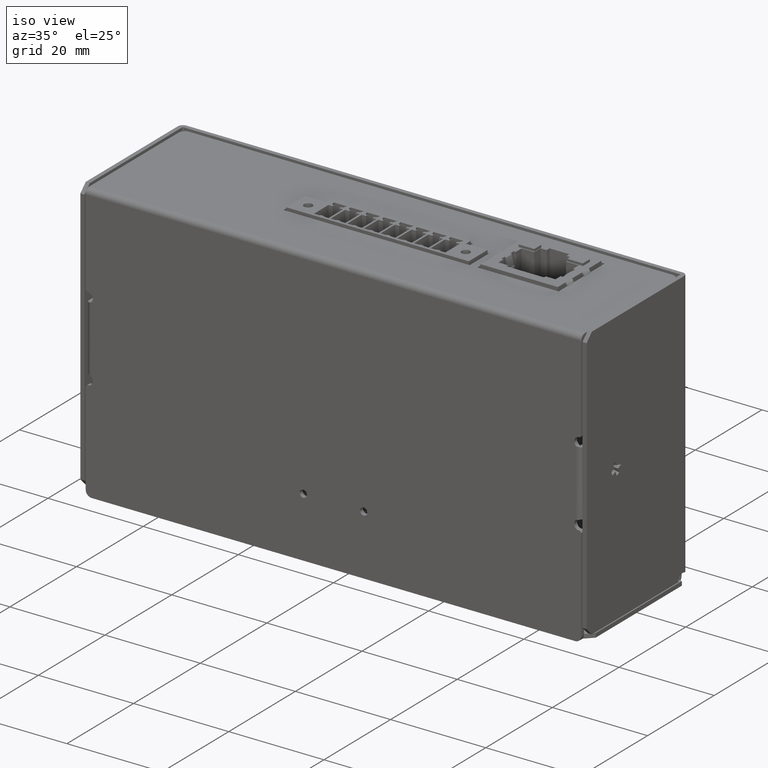
[diagram: clean part render]
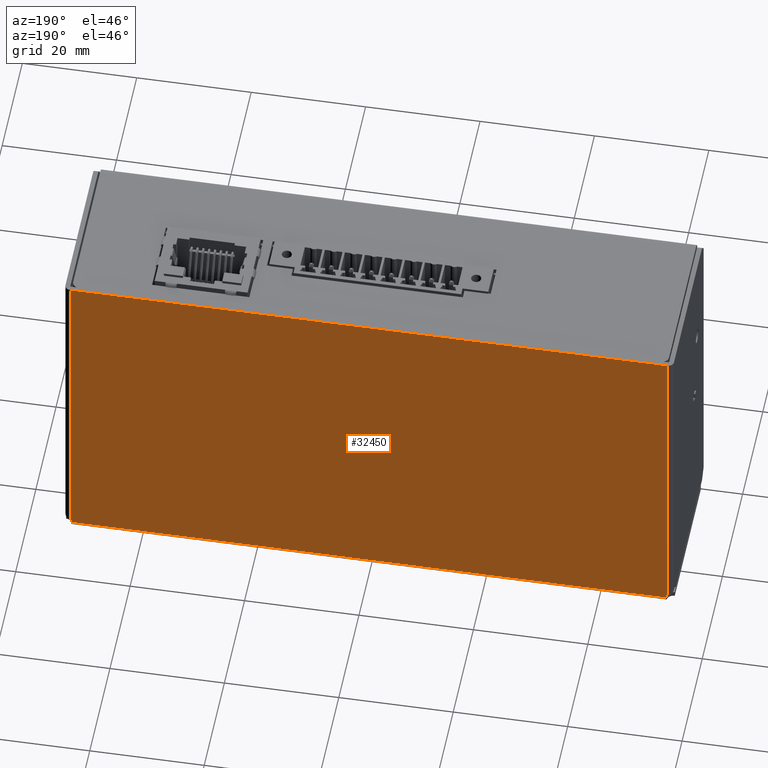
[diagram: tour spotlight — one face highlighted and labeled with its STEP entity id]
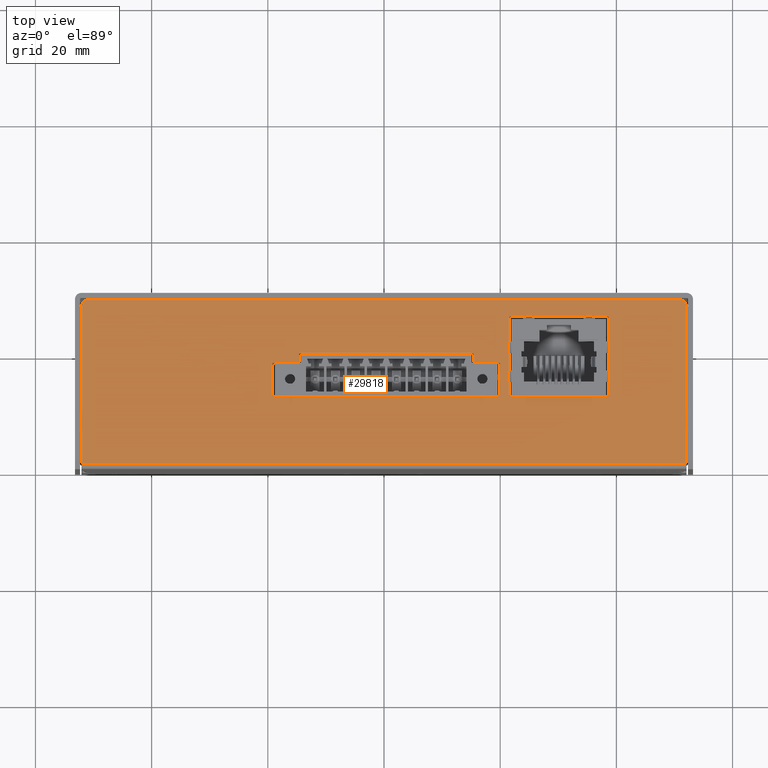
[diagram: tour spotlight — one face highlighted and labeled with its STEP entity id]
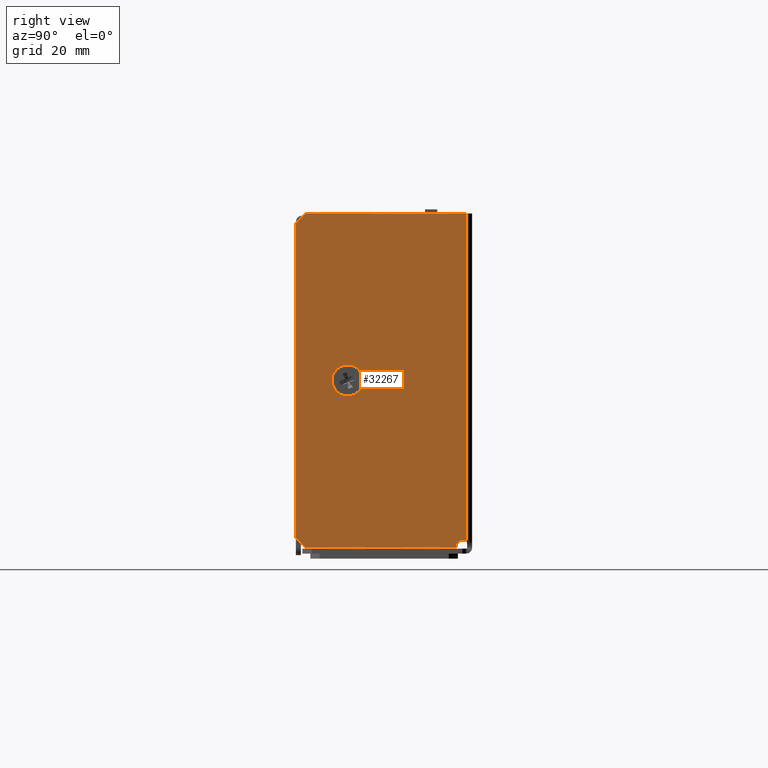
[diagram: tour spotlight — one face highlighted and labeled with its STEP entity id]
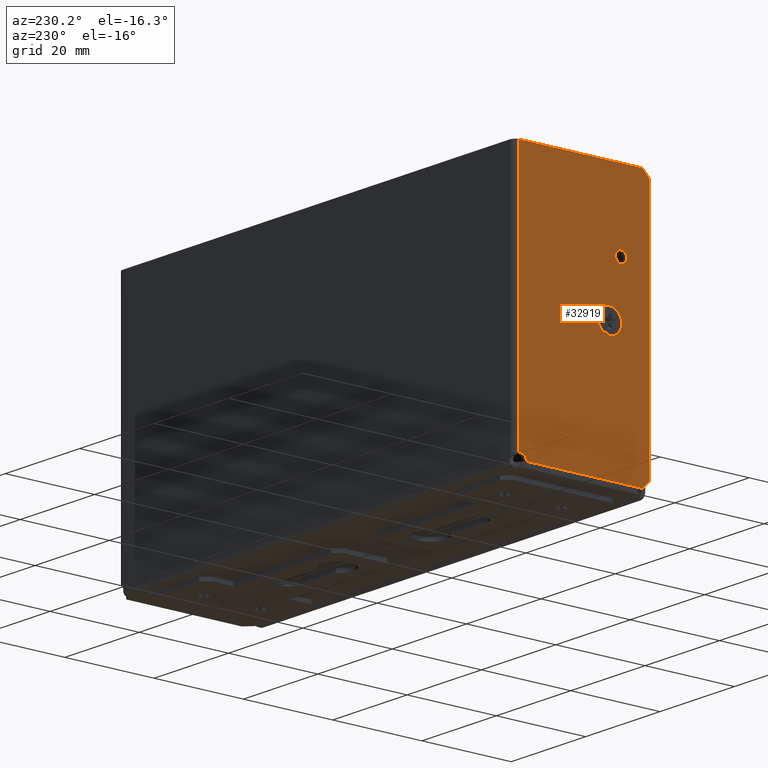
[diagram: tour spotlight — one face highlighted and labeled with its STEP entity id]
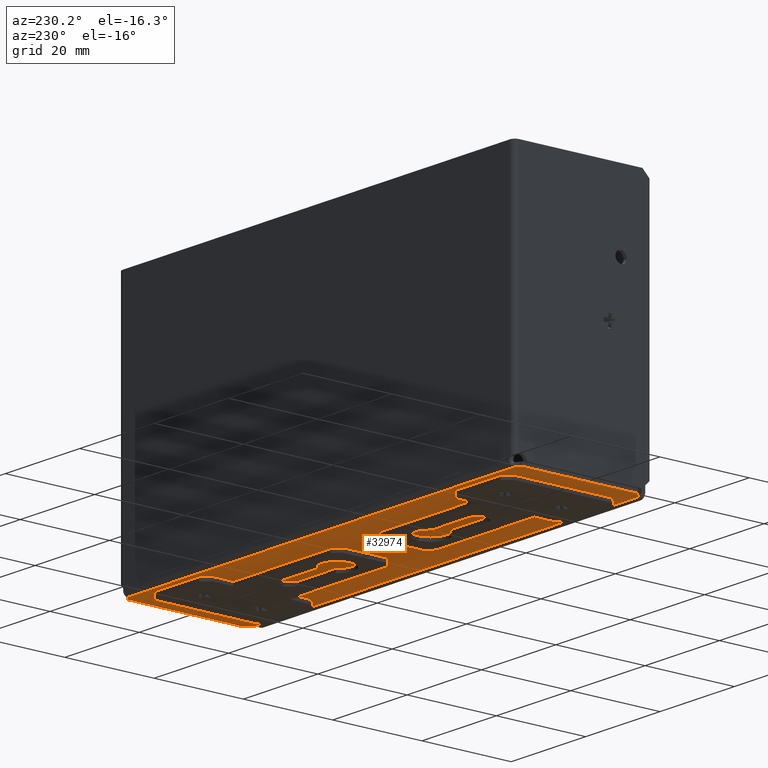
[diagram: tour spotlight — one face highlighted and labeled with its STEP entity id]
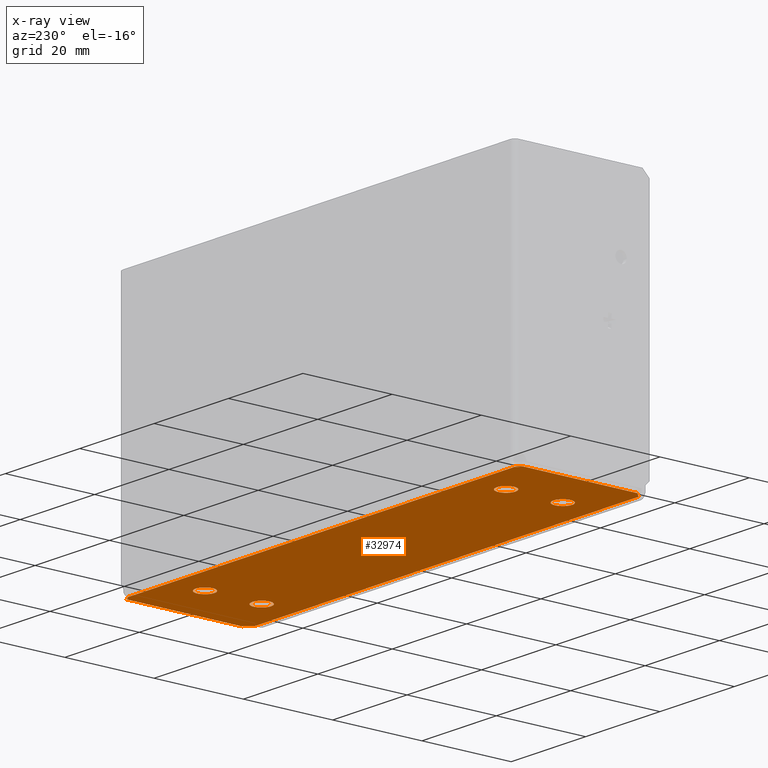
[diagram: x-ray of the same camera — body ghosted, this tour face saturated]
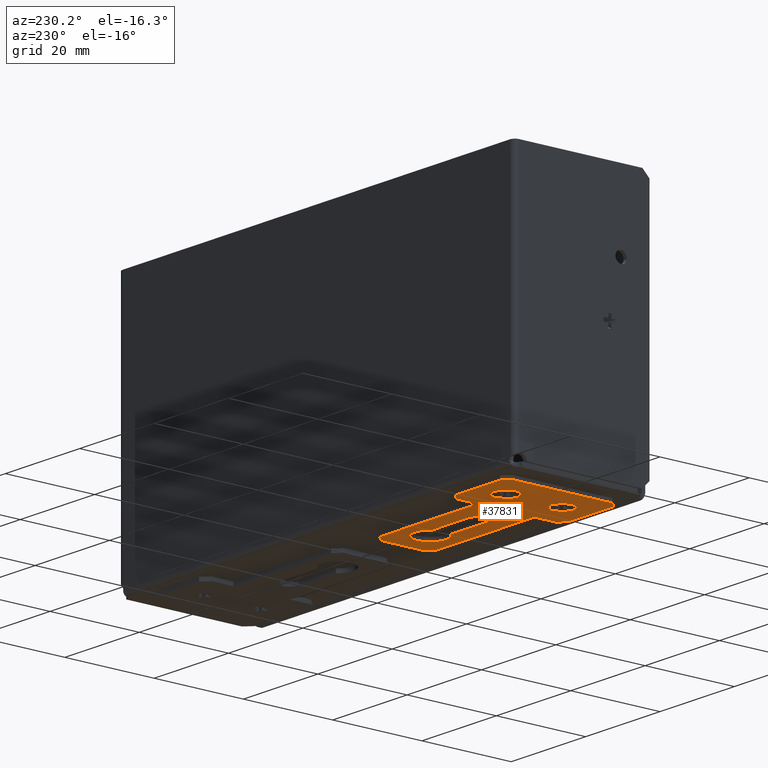
[diagram: tour spotlight — one face highlighted and labeled with its STEP entity id]
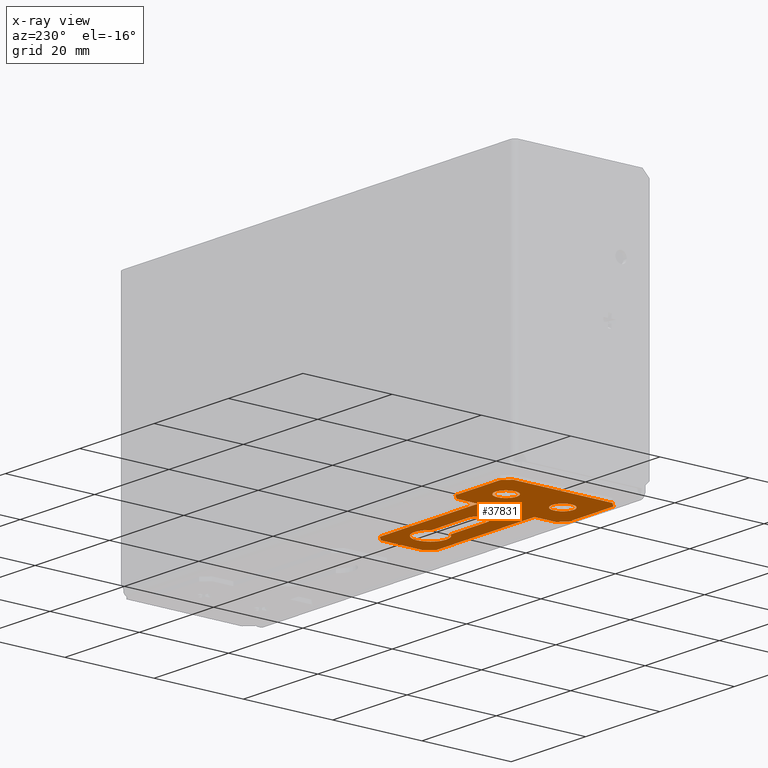
[diagram: x-ray of the same camera — body ghosted, this tour face saturated]
A machine part: a face-by-face anatomy tour. The part has 1856 B-rep faces; the first image is the clean iso view, then the 6 largest visible faces are spotlighted one at a time (largest first), each with its STEP entity span.

Face 1 — auxiliary view, entity #32450. In plain terms, the highlighted planar face has unit normal (0, 1, 0).
Definition (entity closure, byte-faithful):
#4998 = AXIS2_PLACEMENT_3D ( 'NONE', #10525, #10527, #10529 ) ;
#6060 = CARTESIAN_POINT ( 'NONE',  ( 53.18760000000003200, 0.0000000000000000000, -28.74009999999994500 ) ) ;
#6061 = DIRECTION ( 'NONE',  ( -0.0000000000000000000, -1.000000000000000000, -0.0000000000000000000 ) ) ;
#6062 = DIRECTION ( 'NONE',  ( 0.0000000000000000000, 0.0000000000000000000, 1.000000000000000000 ) ) ;
#10502 = FACE_OUTER_BOUND ( 'NONE', #41234, .T. ) ;
#10521 = PLANE ( 'NONE',  #4998 ) ;
#10525 = CARTESIAN_POINT ( 'NONE',  ( -53.18759999999992500, 0.0000000000000000000, -28.74009999999994500 ) ) ;
#10527 = DIRECTION ( 'NONE',  ( 0.0000000000000000000, 1.000000000000000000, 0.0000000000000000000 ) ) ;
#10529 = DIRECTION ( 'NONE',  ( 0.0000000000000000000, -0.0000000000000000000, 1.000000000000000000 ) ) ;
#11349 = LINE ( 'NONE', #11350, #15221 ) ;
#11350 = CARTESIAN_POINT ( 'NONE',  ( -80.40370000000002900, 0.0000000000000000000, 28.74009999999997300 ) ) ;
#11351 = DIRECTION ( 'NONE',  ( 1.000000000000000000, 0.0000000000000000000, 3.236275462404354500E-016 ) ) ;
#11611 = CARTESIAN_POINT ( 'NONE',  ( 52.12080000000000300, 0.0000000000000000000, -28.74009999999994500 ) ) ;
#11623 = LINE ( 'NONE', #11611, #15329 ) ;
#11627 = DIRECTION ( 'NONE',  ( 0.0000000000000000000, 0.0000000000000000000, -1.000000000000000000 ) ) ;
#11640 = LINE ( 'NONE', #11641, #15303 ) ;
#11641 = CARTESIAN_POINT ( 'NONE',  ( -53.18759999999992500, 0.0000000000000000000, -28.74009999999997000 ) ) ;
#11642 = DIRECTION ( 'NONE',  ( -1.000000000000000000, 0.0000000000000000000, -4.677821906959356400E-016 ) ) ;
#11699 = CARTESIAN_POINT ( 'NONE',  ( -52.12079999999993900, 0.0000000000000000000, -28.74009999999994500 ) ) ;
#11706 = LINE ( 'NONE', #11699, #15273 ) ;
#11710 = DIRECTION ( 'NONE',  ( 1.099644633393383600E-015, 0.0000000000000000000, -1.000000000000000000 ) ) ;
#11730 = CARTESIAN_POINT ( 'NONE',  ( -53.18759999999992500, 0.0000000000000000000, -28.74009999999994500 ) ) ;
#11731 = DIRECTION ( 'NONE',  ( -0.0000000000000000000, -1.000000000000000000, -0.0000000000000000000 ) ) ;
#11732 = DIRECTION ( 'NONE',  ( 0.0000000000000000000, 0.0000000000000000000, 1.000000000000000000 ) ) ;
#12294 = ORIENTED_EDGE ( 'NONE', *, *, #37611, .T. ) ;
#14858 = AXIS2_PLACEMENT_3D ( 'NONE', #6060, #6061, #6062 ) ;
#15221 = VECTOR ( 'NONE', #11351, 1000.000000000000000 ) ;
#15243 = CIRCLE ( 'NONE', #15248, 1.270000000000003800 ) ;
#15248 = AXIS2_PLACEMENT_3D ( 'NONE', #11730, #11731, #11732 ) ;
#15273 = VECTOR ( 'NONE', #11710, 1000.000000000000000 ) ;
#15303 = VECTOR ( 'NONE', #11642, 1000.000000000000000 ) ;
#15329 = VECTOR ( 'NONE', #11627, 1000.000000000000000 ) ;
#15517 = CIRCLE ( 'NONE', #14858, 1.269999999999996900 ) ;
#27552 = VERTEX_POINT ( 'NONE', #38857 ) ;
#27553 = VERTEX_POINT ( 'NONE', #38859 ) ;
#27555 = VERTEX_POINT ( 'NONE', #38861 ) ;
#32450 = ADVANCED_FACE ( 'NONE', ( #10502 ), #10521, .T. ) ;
#37376 = EDGE_CURVE ( 'NONE', #27553, #27552, #15517, .T. ) ;
#37521 = EDGE_CURVE ( 'NONE', #27555, #42380, #11349, .T. ) ;
#37611 = EDGE_CURVE ( 'NONE', #42380, #27553, #11623, .T. ) ;
#37616 = EDGE_CURVE ( 'NONE', #27552, #42429, #11640, .T. ) ;
#37639 = EDGE_CURVE ( 'NONE', #27555, #42775, #11706, .T. ) ;
#37645 = EDGE_CURVE ( 'NONE', #42429, #42775, #15243, .T. ) ;
#38857 = CARTESIAN_POINT ( 'NONE',  ( 51.91760000000002900, 0.0000000000000000000, -28.74009999999992000 ) ) ;
#38859 = CARTESIAN_POINT ( 'NONE',  ( 52.12079999999996700, 0.0000000000000000000, -28.05101527371446200 ) ) ;
#38861 = CARTESIAN_POINT ( 'NONE',  ( -52.12080000000000300, 0.0000000000000000000, 28.74009999999998400 ) ) ;
#41234 = EDGE_LOOP ( 'NONE', ( #47774, #12294, #47767, #47780, #47581, #47663 ) ) ;
#42380 = VERTEX_POINT ( 'NONE', #43548 ) ;
#42429 = VERTEX_POINT ( 'NONE', #43596 ) ;
#42775 = VERTEX_POINT ( 'NONE', #43854 ) ;
#43548 = CARTESIAN_POINT ( 'NONE',  ( 52.12079999999999600, 0.0000000000000000000, 28.74010000000001600 ) ) ;
#43596 = CARTESIAN_POINT ( 'NONE',  ( -51.91759999999999300, -2.168404344971008900E-016, -28.74010000000004400 ) ) ;
#43854 = CARTESIAN_POINT ( 'NONE',  ( -52.12079999999993900, 0.0000000000000000000, -28.05101527371439500 ) ) ;
#47581 = ORIENTED_EDGE ( 'NONE', *, *, #37645, .T. ) ;
#47663 = ORIENTED_EDGE ( 'NONE', *, *, #37639, .F. ) ;
#47767 = ORIENTED_EDGE ( 'NONE', *, *, #37376, .T. ) ;
#47774 = ORIENTED_EDGE ( 'NONE', *, *, #37521, .T. ) ;
#47780 = ORIENTED_EDGE ( 'NONE', *, *, #37616, .T. ) ;

Face 2 — top view, entity #29818. In plain terms, the highlighted planar face has unit normal (0, 0, 1).
Definition (entity closure, byte-faithful):
#3977 = VECTOR ( 'NONE', #5540, 1000.000000000000000 ) ;
#4259 = VECTOR ( 'NONE', #40000, 1000.000000000000000 ) ;
#5504 = LINE ( 'NONE', #5538, #3977 ) ;
#5538 = CARTESIAN_POINT ( 'NONE',  ( 54.35599999745999600, -1.066800000000003100, -28.35909999999999100 ) ) ;
#5540 = DIRECTION ( 'NONE',  ( -1.000000000000000000, 0.0000000000000000000, -0.0000000000000000000 ) ) ;
#11695 = LINE ( 'NONE', #11701, #15281 ) ;
#11701 = CARTESIAN_POINT ( 'NONE',  ( 21.59000000000003500, -26.26360000000000000, -28.35909999999990600 ) ) ;
#11702 = DIRECTION ( 'NONE',  ( 0.0000000000000000000, 1.000000000000000000, -3.491481338843133400E-015 ) ) ;
#11770 = LINE ( 'NONE', #11771, #14021 ) ;
#11771 = CARTESIAN_POINT ( 'NONE',  ( 38.60800000000002500, -26.26360000000000000, -28.35909999999990600 ) ) ;
#11772 = DIRECTION ( 'NONE',  ( -1.000000000000000000, 0.0000000000000000000, -0.0000000000000000000 ) ) ;
#11807 = LINE ( 'NONE', #11843, #14847 ) ;
#11843 = CARTESIAN_POINT ( 'NONE',  ( 38.60800000000002500, -12.42059999999997200, -28.35909999999994800 ) ) ;
#11844 = DIRECTION ( 'NONE',  ( 0.0000000000000000000, -1.000000000000000000, 3.491481338843133400E-015 ) ) ;
#14021 = VECTOR ( 'NONE', #11772, 1000.000000000000000 ) ;
#14675 = VECTOR ( 'NONE', #22063, 1000.000000000000000 ) ;
#14847 = VECTOR ( 'NONE', #11844, 1000.000000000000000 ) ;
#15281 = VECTOR ( 'NONE', #11702, 1000.000000000000000 ) ;
#16874 = EDGE_LOOP ( 'NONE', ( #30682, #30689, #30692, #30668, #30665, #30725, #30489, #30752 ) ) ;
#16894 = EDGE_LOOP ( 'NONE', ( #30755, #30758, #30717, #30761 ) ) ;
#17699 = EDGE_LOOP ( 'NONE', ( #30671, #30674, #30676, #30679, #30685, #30687 ) ) ;
#17911 = LINE ( 'NONE', #17922, #20180 ) ;
#17922 = CARTESIAN_POINT ( 'NONE',  ( 15.35999874400005700, -19.91359999999999900, -28.35909999999992700 ) ) ;
#17927 = DIRECTION ( 'NONE',  ( -1.000000000000000000, 0.0000000000000000000, -0.0000000000000000000 ) ) ;
#17945 = VERTEX_POINT ( 'NONE', #31560 ) ;
#17949 = VERTEX_POINT ( 'NONE', #31564 ) ;
#17952 = VERTEX_POINT ( 'NONE', #31569 ) ;
#17957 = VERTEX_POINT ( 'NONE', #31576 ) ;
#17969 = VERTEX_POINT ( 'NONE', #31594 ) ;
#18031 = VERTEX_POINT ( 'NONE', #31677 ) ;
#18067 = VERTEX_POINT ( 'NONE', #31727 ) ;
#18096 = VERTEX_POINT ( 'NONE', #31765 ) ;
#18104 = VERTEX_POINT ( 'NONE', #31774 ) ;
#18347 = VERTEX_POINT ( 'NONE', #32014 ) ;
#18349 = VERTEX_POINT ( 'NONE', #32015 ) ;
#20138 = CARTESIAN_POINT ( 'NONE',  ( 50.80000000000001800, -29.20999999999992600, -28.35909999999989500 ) ) ;
#20155 = LINE ( 'NONE', #20138, #34648 ) ;
#20163 = DIRECTION ( 'NONE',  ( -1.000000000000000000, -7.512581982576722400E-016, 2.623003979869577500E-030 ) ) ;
#20180 = VECTOR ( 'NONE', #17927, 1000.000000000000000 ) ;
#20311 = VECTOR ( 'NONE', #51901, 1000.000000000000000 ) ;
#22061 = LINE ( 'NONE', #22062, #14675 ) ;
#22062 = CARTESIAN_POINT ( 'NONE',  ( 21.59000000000003500, -12.42059999999997200, -28.35909999999994800 ) ) ;
#22063 = DIRECTION ( 'NONE',  ( 1.000000000000000000, 0.0000000000000000000, 0.0000000000000000000 ) ) ;
#25288 = AXIS2_PLACEMENT_3D ( 'NONE', #39370, #39371, #39372 ) ;
#25313 = CIRCLE ( 'NONE', #26140, 1.270000000000000200 ) ;
#25392 = VECTOR ( 'NONE', #39927, 1000.000000000000000 ) ;
#25550 = VECTOR ( 'NONE', #38129, 1000.000000000000000 ) ;
#25592 = VECTOR ( 'NONE', #39931, 1000.000000000000000 ) ;
#25725 = CIRCLE ( 'NONE', #25288, 1.270000000000007100 ) ;
#25768 = VECTOR ( 'NONE', #39832, 1000.000000000000000 ) ;
#25988 = AXIS2_PLACEMENT_3D ( 'NONE', #38615, #38620, #38622 ) ;
#25990 = VECTOR ( 'NONE', #39376, 1000.000000000000000 ) ;
#26008 = VECTOR ( 'NONE', #38126, 1000.000000000000000 ) ;
#26066 = VECTOR ( 'NONE', #39352, 1000.000000000000000 ) ;
#26140 = AXIS2_PLACEMENT_3D ( 'NONE', #39343, #39345, #39347 ) ;
#29258 = EDGE_CURVE ( 'NONE', #42153, #17949, #39342, .T. ) ;
#29265 = EDGE_CURVE ( 'NONE', #42389, #18347, #25725, .T. ) ;
#29267 = EDGE_CURVE ( 'NONE', #17969, #17945, #39366, .T. ) ;
#29412 = EDGE_CURVE ( 'NONE', #17952, #18349, #39827, .T. ) ;
#29457 = EDGE_CURVE ( 'NONE', #18347, #41987, #39923, .T. ) ;
#29458 = EDGE_CURVE ( 'NONE', #42331, #41989, #39928, .T. ) ;
#29604 = EDGE_CURVE ( 'NONE', #17949, #17952, #38119, .T. ) ;
#29607 = EDGE_CURVE ( 'NONE', #42406, #42153, #38125, .T. ) ;
#29818 = ADVANCED_FACE ( 'NONE', ( #38612, #38601, #38606 ), #38608, .T. ) ;
#29981 = EDGE_CURVE ( 'NONE', #41989, #42388, #25313, .T. ) ;
#30126 = EDGE_CURVE ( 'NONE', #17957, #17969, #17911, .T. ) ;
#30489 = ORIENTED_EDGE ( 'NONE', *, *, #30126, .F. ) ;
#30665 = ORIENTED_EDGE ( 'NONE', *, *, #31964, .F. ) ;
#30668 = ORIENTED_EDGE ( 'NONE', *, *, #29607, .F. ) ;
#30671 = ORIENTED_EDGE ( 'NONE', *, *, #37206, .F. ) ;
#30674 = ORIENTED_EDGE ( 'NONE', *, *, #29458, .T. ) ;
#30676 = ORIENTED_EDGE ( 'NONE', *, *, #29981, .T. ) ;
#30679 = ORIENTED_EDGE ( 'NONE', *, *, #33121, .T. ) ;
#30682 = ORIENTED_EDGE ( 'NONE', *, *, #29412, .F. ) ;
#30685 = ORIENTED_EDGE ( 'NONE', *, *, #29265, .T. ) ;
#30687 = ORIENTED_EDGE ( 'NONE', *, *, #29457, .T. ) ;
#30689 = ORIENTED_EDGE ( 'NONE', *, *, #29604, .F. ) ;
#30692 = ORIENTED_EDGE ( 'NONE', *, *, #29258, .F. ) ;
#30717 = ORIENTED_EDGE ( 'NONE', *, *, #37636, .F. ) ;
#30725 = ORIENTED_EDGE ( 'NONE', *, *, #29267, .F. ) ;
#30752 = ORIENTED_EDGE ( 'NONE', *, *, #33186, .F. ) ;
#30755 = ORIENTED_EDGE ( 'NONE', *, *, #37683, .F. ) ;
#30758 = ORIENTED_EDGE ( 'NONE', *, *, #37722, .F. ) ;
#30761 = ORIENTED_EDGE ( 'NONE', *, *, #37659, .F. ) ;
#31560 = CARTESIAN_POINT ( 'NONE',  ( -14.61200125599998000, -18.26259999999997400, -28.35909999999993400 ) ) ;
#31564 = CARTESIAN_POINT ( 'NONE',  ( 19.93199874400005100, -12.42059999999995200, -28.35909999999994800 ) ) ;
#31569 = CARTESIAN_POINT ( 'NONE',  ( 19.93199874400005100, -18.26259999999997400, -28.35909999999993400 ) ) ;
#31576 = CARTESIAN_POINT ( 'NONE',  ( 15.35999874400005700, -19.91359999999999900, -28.35909999999992700 ) ) ;
#31594 = CARTESIAN_POINT ( 'NONE',  ( -14.61200125599998000, -19.91359999999999900, -28.35909999999992700 ) ) ;
#31677 = CARTESIAN_POINT ( 'NONE',  ( 38.60800000000002500, -26.26360000000000000, -28.35909999999990600 ) ) ;
#31727 = CARTESIAN_POINT ( 'NONE',  ( 21.59000000000003500, -12.42059999999997200, -28.35909999999994800 ) ) ;
#31765 = CARTESIAN_POINT ( 'NONE',  ( 38.60800000000002500, -12.42059999999997200, -28.35909999999994800 ) ) ;
#31774 = CARTESIAN_POINT ( 'NONE',  ( 21.59000000000003500, -26.26360000000000000, -28.35909999999990600 ) ) ;
#31964 = EDGE_CURVE ( 'NONE', #17945, #42406, #51898, .T. ) ;
#32014 = CARTESIAN_POINT ( 'NONE',  ( -52.07000000000000700, -27.93999999999992700, -28.35909999999989900 ) ) ;
#32015 = CARTESIAN_POINT ( 'NONE',  ( 15.35999874400005500, -18.26259999999997400, -28.35909999999993400 ) ) ;
#33121 = EDGE_CURVE ( 'NONE', #42388, #42389, #20155, .T. ) ;
#33186 = EDGE_CURVE ( 'NONE', #18349, #17957, #39991, .T. ) ;
#34648 = VECTOR ( 'NONE', #20163, 1000.000000000000000 ) ;
#37206 = EDGE_CURVE ( 'NONE', #42331, #41987, #5504, .T. ) ;
#37636 = EDGE_CURVE ( 'NONE', #18104, #18067, #11695, .T. ) ;
#37659 = EDGE_CURVE ( 'NONE', #18031, #18104, #11770, .T. ) ;
#37683 = EDGE_CURVE ( 'NONE', #18096, #18031, #11807, .T. ) ;
#37722 = EDGE_CURVE ( 'NONE', #18067, #18096, #22061, .T. ) ;
#38119 = LINE ( 'NONE', #38124, #26008 ) ;
#38122 = CARTESIAN_POINT ( 'NONE',  ( -19.18400125599997400, -18.26259999999997400, -28.35909999999993400 ) ) ;
#38124 = CARTESIAN_POINT ( 'NONE',  ( 19.93199874400005100, -12.42059999999995200, -28.35909999999994800 ) ) ;
#38125 = LINE ( 'NONE', #38122, #25550 ) ;
#38126 = DIRECTION ( 'NONE',  ( 0.0000000000000000000, -1.000000000000000000, 3.491481338843133700E-015 ) ) ;
#38129 = DIRECTION ( 'NONE',  ( 0.0000000000000000000, 1.000000000000000000, -3.491481338843133700E-015 ) ) ;
#38601 = FACE_BOUND ( 'NONE', #16874, .T. ) ;
#38606 = FACE_BOUND ( 'NONE', #16894, .T. ) ;
#38608 = PLANE ( 'NONE',  #25988 ) ;
#38612 = FACE_OUTER_BOUND ( 'NONE', #17699, .T. ) ;
#38615 = CARTESIAN_POINT ( 'NONE',  ( 54.35599999745999600, 18.99920000000001600, -28.35910000000006200 ) ) ;
#38620 = DIRECTION ( 'NONE',  ( 0.0000000000000000000, -3.491481338843133400E-015, -1.000000000000000000 ) ) ;
#38622 = DIRECTION ( 'NONE',  ( 0.0000000000000000000, 1.000000000000000000, -3.491481338843133400E-015 ) ) ;
#39340 = CARTESIAN_POINT ( 'NONE',  ( -19.18400125599997400, -12.42059999999995200, -28.35909999999994800 ) ) ;
#39342 = LINE ( 'NONE', #39340, #26066 ) ;
#39343 = CARTESIAN_POINT ( 'NONE',  ( 50.80000000000001800, -27.93999999999992700, -28.35909999999989900 ) ) ;
#39345 = DIRECTION ( 'NONE',  ( 0.0000000000000000000, -3.491481338843133400E-015, -1.000000000000000000 ) ) ;
#39347 = DIRECTION ( 'NONE',  ( 0.0000000000000000000, 1.000000000000000000, -2.731847993664262400E-015 ) ) ;
#39352 = DIRECTION ( 'NONE',  ( 1.000000000000000000, 0.0000000000000000000, 0.0000000000000000000 ) ) ;
#39366 = LINE ( 'NONE', #39368, #25990 ) ;
#39368 = CARTESIAN_POINT ( 'NONE',  ( -14.61200125599998000, -19.91359999999999900, -28.35909999999992700 ) ) ;
#39370 = CARTESIAN_POINT ( 'NONE',  ( -50.79999999999999700, -27.93999999999999800, -28.35909999999989900 ) ) ;
#39371 = DIRECTION ( 'NONE',  ( 0.0000000000000000000, -3.491481338843133400E-015, -1.000000000000000000 ) ) ;
#39372 = DIRECTION ( 'NONE',  ( 0.0000000000000000000, 1.000000000000000000, -2.731847993664247800E-015 ) ) ;
#39376 = DIRECTION ( 'NONE',  ( 0.0000000000000000000, 1.000000000000000000, -3.491481338843133400E-015 ) ) ;
#39827 = LINE ( 'NONE', #39830, #25768 ) ;
#39830 = CARTESIAN_POINT ( 'NONE',  ( 19.93199874400005100, -18.26259999999997400, -28.35909999999993400 ) ) ;
#39832 = DIRECTION ( 'NONE',  ( -1.000000000000000000, 0.0000000000000000000, -0.0000000000000000000 ) ) ;
#39918 = CARTESIAN_POINT ( 'NONE',  ( -52.07000000000000700, -27.93999999999992700, -28.35909999999989900 ) ) ;
#39923 = LINE ( 'NONE', #39918, #25392 ) ;
#39927 = DIRECTION ( 'NONE',  ( 1.217536710268197200E-015, 1.000000000000000000, -3.491481338843133700E-015 ) ) ;
#39928 = LINE ( 'NONE', #39930, #25592 ) ;
#39930 = CARTESIAN_POINT ( 'NONE',  ( 52.06999999999999300, 17.65300000000001600, -28.35910000000005800 ) ) ;
#39931 = DIRECTION ( 'NONE',  ( 6.087683551340985000E-016, -1.000000000000000000, 3.491481338843133400E-015 ) ) ;
#39991 = LINE ( 'NONE', #39999, #4259 ) ;
#39999 = CARTESIAN_POINT ( 'NONE',  ( 15.35999874400005700, -18.26259999999997400, -28.35909999999993400 ) ) ;
#40000 = DIRECTION ( 'NONE',  ( 0.0000000000000000000, -1.000000000000000000, 3.491481338843133400E-015 ) ) ;
#41987 = VERTEX_POINT ( 'NONE', #43216 ) ;
#41989 = VERTEX_POINT ( 'NONE', #43218 ) ;
#42153 = VERTEX_POINT ( 'NONE', #43323 ) ;
#42331 = VERTEX_POINT ( 'NONE', #43500 ) ;
#42388 = VERTEX_POINT ( 'NONE', #43556 ) ;
#42389 = VERTEX_POINT ( 'NONE', #43557 ) ;
#42406 = VERTEX_POINT ( 'NONE', #43574 ) ;
#43216 = CARTESIAN_POINT ( 'NONE',  ( -52.06999999999997200, -1.066800000000010200, -28.35909999999999100 ) ) ;
#43218 = CARTESIAN_POINT ( 'NONE',  ( 52.07000000000002200, -27.93999999999992700, -28.35909999999989900 ) ) ;
#43323 = CARTESIAN_POINT ( 'NONE',  ( -19.18400125599997400, -12.42059999999995200, -28.35909999999994800 ) ) ;
#43500 = CARTESIAN_POINT ( 'NONE',  ( 52.07000000000000700, -1.066800000000003100, -28.35909999999999100 ) ) ;
#43556 = CARTESIAN_POINT ( 'NONE',  ( 50.80000000000001800, -29.20999999999992600, -28.35909999999989500 ) ) ;
#43557 = CARTESIAN_POINT ( 'NONE',  ( -50.79999999999999700, -29.21000000000000400, -28.35909999999989500 ) ) ;
#43574 = CARTESIAN_POINT ( 'NONE',  ( -19.18400125599997400, -18.26259999999997400, -28.35909999999993400 ) ) ;
#51898 = LINE ( 'NONE', #51899, #20311 ) ;
#51899 = CARTESIAN_POINT ( 'NONE',  ( -14.61200125599998000, -18.26259999999997400, -28.35909999999993400 ) ) ;
#51901 = DIRECTION ( 'NONE',  ( -1.000000000000000000, 0.0000000000000000000, -0.0000000000000000000 ) ) ;

Face 3 — right view, entity #32267. In plain terms, the highlighted planar face has unit normal (1, -0, 0).
Definition (entity closure, byte-faithful):
#3934 = CIRCLE ( 'NONE', #3936, 2.374899999999999300 ) ;
#3936 = AXIS2_PLACEMENT_3D ( 'NONE', #5826, #5827, #5828 ) ;
#3955 = VECTOR ( 'NONE', #5849, 1000.000000000000000 ) ;
#4344 = CIRCLE ( 'NONE', #4449, 1.269999999999996900 ) ;
#4449 = AXIS2_PLACEMENT_3D ( 'NONE', #5880, #5881, #5882 ) ;
#5826 = CARTESIAN_POINT ( 'NONE',  ( 53.18759999999993200, -21.43759999999999300, 2.286000000000000000E-014 ) ) ;
#5827 = DIRECTION ( 'NONE',  ( 1.000000000000000000, -3.491481338843133400E-015, 0.0000000000000000000 ) ) ;
#5828 = DIRECTION ( 'NONE',  ( 0.0000000000000000000, 0.0000000000000000000, 1.000000000000000000 ) ) ;
#5847 = LINE ( 'NONE', #5848, #3955 ) ;
#5848 = CARTESIAN_POINT ( 'NONE',  ( 53.18760000000000300, -1.066799999999992600, -28.74009999999994500 ) ) ;
#5849 = DIRECTION ( 'NONE',  ( 0.0000000000000000000, -0.0000000000000000000, -1.000000000000000000 ) ) ;
#5880 = CARTESIAN_POINT ( 'NONE',  ( 53.18760000000000300, -1.524000000000018500, -28.74009999999994500 ) ) ;
#5881 = DIRECTION ( 'NONE',  ( -1.000000000000000000, 3.491481338843133400E-015, -0.0000000000000000000 ) ) ;
#5882 = DIRECTION ( 'NONE',  ( 0.0000000000000000000, 0.0000000000000000000, 1.000000000000000000 ) ) ;
#5890 = LINE ( 'NONE', #5896, #14868 ) ;
#5896 = CARTESIAN_POINT ( 'NONE',  ( 53.18759999999991100, -28.74010000000001200, 28.74010000000002700 ) ) ;
#5897 = DIRECTION ( 'NONE',  ( -2.468850131082270900E-015, -0.7071067811865490200, -0.7071067811865460200 ) ) ;
#5904 = LINE ( 'NONE', #5905, #15504 ) ;
#5905 = CARTESIAN_POINT ( 'NONE',  ( 53.18759999999991100, -28.74010000000001200, -28.74009999999987400 ) ) ;
#5906 = DIRECTION ( 'NONE',  ( 2.468850131082270900E-015, 0.7071067811865490200, -0.7071067811865460200 ) ) ;
#5907 = LINE ( 'NONE', #5908, #15498 ) ;
#5908 = CARTESIAN_POINT ( 'NONE',  ( 53.18759999999990400, -30.32760000000001800, 27.15260000000002800 ) ) ;
#5909 = DIRECTION ( 'NONE',  ( 0.0000000000000000000, -0.0000000000000000000, -1.000000000000000000 ) ) ;
#5923 = LINE ( 'NONE', #5924, #15515 ) ;
#5924 = CARTESIAN_POINT ( 'NONE',  ( 53.18759999999991100, -28.74010000000001200, -28.74009999999987400 ) ) ;
#5925 = DIRECTION ( 'NONE',  ( 3.491481338843133400E-015, 1.000000000000000000, -2.808066953839918200E-015 ) ) ;
#5926 = LINE ( 'NONE', #5927, #15509 ) ;
#5927 = CARTESIAN_POINT ( 'NONE',  ( 53.18760000000046500, 132.0673000000000200, 28.74009999999997300 ) ) ;
#5928 = DIRECTION ( 'NONE',  ( -3.491481338843133400E-015, -1.000000000000000000, 3.236275462404354500E-016 ) ) ;
#9686 = DIRECTION ( 'NONE',  ( 1.000000000000000000, -3.491481338843133400E-015, 0.0000000000000000000 ) ) ;
#9690 = CARTESIAN_POINT ( 'NONE',  ( 53.18760000000037300, 104.8511999999999300, -28.74009999999994500 ) ) ;
#9692 = FACE_OUTER_BOUND ( 'NONE', #17214, .T. ) ;
#9695 = FACE_BOUND ( 'NONE', #16720, .T. ) ;
#9697 = PLANE ( 'NONE',  #21730 ) ;
#9699 = DIRECTION ( 'NONE',  ( 0.0000000000000000000, 0.0000000000000000000, 1.000000000000000000 ) ) ;
#11174 = CARTESIAN_POINT ( 'NONE',  ( 53.18760000000000300, -1.524000000000018500, -28.74009999999994500 ) ) ;
#11175 = DIRECTION ( 'NONE',  ( -1.000000000000000000, 3.491481338843133400E-015, -0.0000000000000000000 ) ) ;
#11176 = DIRECTION ( 'NONE',  ( 0.0000000000000000000, 0.0000000000000000000, 1.000000000000000000 ) ) ;
#11246 = CARTESIAN_POINT ( 'NONE',  ( 53.18759999999993200, -21.43759999999999300, 2.286000000000000000E-014 ) ) ;
#11247 = DIRECTION ( 'NONE',  ( 1.000000000000000000, -3.491481338843133400E-015, 0.0000000000000000000 ) ) ;
#11248 = DIRECTION ( 'NONE',  ( 0.0000000000000000000, 0.0000000000000000000, 1.000000000000000000 ) ) ;
#12199 = ORIENTED_EDGE ( 'NONE', *, *, #37486, .F. ) ;
#12237 = ORIENTED_EDGE ( 'NONE', *, *, #37332, .T. ) ;
#12356 = ORIENTED_EDGE ( 'NONE', *, *, #37325, .T. ) ;
#14868 = VECTOR ( 'NONE', #5897, 1000.000000000000100 ) ;
#14874 = CIRCLE ( 'NONE', #15010, 1.269999999999996900 ) ;
#14949 = CIRCLE ( 'NONE', #14952, 2.374899999999999300 ) ;
#14952 = AXIS2_PLACEMENT_3D ( 'NONE', #11246, #11247, #11248 ) ;
#15010 = AXIS2_PLACEMENT_3D ( 'NONE', #11174, #11175, #11176 ) ;
#15498 = VECTOR ( 'NONE', #5909, 1000.000000000000000 ) ;
#15504 = VECTOR ( 'NONE', #5906, 1000.000000000000100 ) ;
#15509 = VECTOR ( 'NONE', #5928, 1000.000000000000000 ) ;
#15515 = VECTOR ( 'NONE', #5925, 1000.000000000000000 ) ;
#16720 = EDGE_LOOP ( 'NONE', ( #47825, #12199 ) ) ;
#17214 = EDGE_LOOP ( 'NONE', ( #34566, #47856, #47701, #47714, #12356, #12237, #47861, #47859 ) ) ;
#21730 = AXIS2_PLACEMENT_3D ( 'NONE', #9690, #9686, #9699 ) ;
#27377 = VERTEX_POINT ( 'NONE', #38569 ) ;
#32267 = ADVANCED_FACE ( 'NONE', ( #9692, #9695 ), #9697, .T. ) ;
#34566 = ORIENTED_EDGE ( 'NONE', *, *, #37306, .F. ) ;
#37299 = EDGE_CURVE ( 'NONE', #42399, #27377, #3934, .T. ) ;
#37306 = EDGE_CURVE ( 'NONE', #41970, #41967, #5847, .T. ) ;
#37317 = EDGE_CURVE ( 'NONE', #42202, #41967, #4344, .T. ) ;
#37322 = EDGE_CURVE ( 'NONE', #41978, #41972, #5890, .T. ) ;
#37325 = EDGE_CURVE ( 'NONE', #41980, #41982, #5904, .T. ) ;
#37326 = EDGE_CURVE ( 'NONE', #41972, #41980, #5907, .T. ) ;
#37332 = EDGE_CURVE ( 'NONE', #41982, #42430, #5923, .T. ) ;
#37333 = EDGE_CURVE ( 'NONE', #41970, #41978, #5926, .T. ) ;
#37462 = EDGE_CURVE ( 'NONE', #42430, #42202, #14874, .T. ) ;
#37486 = EDGE_CURVE ( 'NONE', #27377, #42399, #14949, .T. ) ;
#38569 = CARTESIAN_POINT ( 'NONE',  ( 53.18759999999993200, -21.43759999999999300, -2.374899999999976300 ) ) ;
#41967 = VERTEX_POINT ( 'NONE', #43196 ) ;
#41970 = VERTEX_POINT ( 'NONE', #43199 ) ;
#41972 = VERTEX_POINT ( 'NONE', #43201 ) ;
#41978 = VERTEX_POINT ( 'NONE', #43207 ) ;
#41980 = VERTEX_POINT ( 'NONE', #43209 ) ;
#41982 = VERTEX_POINT ( 'NONE', #43211 ) ;
#42202 = VERTEX_POINT ( 'NONE', #43371 ) ;
#42399 = VERTEX_POINT ( 'NONE', #43567 ) ;
#42430 = VERTEX_POINT ( 'NONE', #43597 ) ;
#43196 = CARTESIAN_POINT ( 'NONE',  ( 53.18760000000000300, -1.066799999999992600, -27.55525057496739200 ) ) ;
#43199 = CARTESIAN_POINT ( 'NONE',  ( 53.18760000000000300, -1.066799999999999700, 28.74010000000001600 ) ) ;
#43201 = CARTESIAN_POINT ( 'NONE',  ( 53.18759999999990400, -30.32760000000001800, 27.15260000000002800 ) ) ;
#43207 = CARTESIAN_POINT ( 'NONE',  ( 53.18759999999991100, -28.74010000000001200, 28.74010000000002700 ) ) ;
#43209 = CARTESIAN_POINT ( 'NONE',  ( 53.18759999999990400, -30.32760000000001800, -27.15259999999987500 ) ) ;
#43211 = CARTESIAN_POINT ( 'NONE',  ( 53.18759999999991100, -28.74010000000001200, -28.74009999999987400 ) ) ;
#43371 = CARTESIAN_POINT ( 'NONE',  ( 53.18760000000000300, -1.524000000000021300, -27.47009999999994900 ) ) ;
#43567 = CARTESIAN_POINT ( 'NONE',  ( 53.18759999999993200, -21.43759999999999300, 2.374900000000022400 ) ) ;
#43597 = CARTESIAN_POINT ( 'NONE',  ( 53.18760000000000300, -2.794000000000011600, -28.74009999999994500 ) ) ;
#47701 = ORIENTED_EDGE ( 'NONE', *, *, #37322, .T. ) ;
#47714 = ORIENTED_EDGE ( 'NONE', *, *, #37326, .T. ) ;
#47825 = ORIENTED_EDGE ( 'NONE', *, *, #37299, .F. ) ;
#47856 = ORIENTED_EDGE ( 'NONE', *, *, #37333, .T. ) ;
#47859 = ORIENTED_EDGE ( 'NONE', *, *, #37317, .T. ) ;
#47861 = ORIENTED_EDGE ( 'NONE', *, *, #37462, .T. ) ;

Face 4 — auxiliary view, entity #32919. In plain terms, the highlighted planar face has unit normal (-1, -0, -0).
Definition (entity closure, byte-faithful):
#3907 = VECTOR ( 'NONE', #5782, 1000.000000000000000 ) ;
#3932 = CIRCLE ( 'NONE', #3940, 1.269999999999993400 ) ;
#3933 = VECTOR ( 'NONE', #5824, 1000.000000000000000 ) ;
#3940 = AXIS2_PLACEMENT_3D ( 'NONE', #5829, #5830, #5831 ) ;
#3953 = VECTOR ( 'NONE', #5846, 1000.000000000000100 ) ;
#4069 = VECTOR ( 'NONE', #5872, 1000.000000000000000 ) ;
#4174 = AXIS2_PLACEMENT_3D ( 'NONE', #5864, #5865, #5866 ) ;
#4176 = CIRCLE ( 'NONE', #4174, 1.270000000000003800 ) ;
#5772 = LINE ( 'NONE', #5781, #3907 ) ;
#5781 = CARTESIAN_POINT ( 'NONE',  ( -53.18759999999982600, -30.32760000000008600, -27.15259999999991400 ) ) ;
#5782 = DIRECTION ( 'NONE',  ( -1.099644633393387500E-015, 1.099644633393383600E-015, 1.000000000000000000 ) ) ;
#5811 = CARTESIAN_POINT ( 'NONE',  ( -53.18759999999993200, -1.066800000000006600, -28.74009999999994500 ) ) ;
#5819 = LINE ( 'NONE', #5845, #3953 ) ;
#5820 = LINE ( 'NONE', #5811, #3933 ) ;
#5824 = DIRECTION ( 'NONE',  ( 1.099644633393383600E-015, 9.684014484945672900E-018, -1.000000000000000000 ) ) ;
#5829 = CARTESIAN_POINT ( 'NONE',  ( -53.18759999999989700, -23.97760000000003800, 11.88720000000002500 ) ) ;
#5830 = DIRECTION ( 'NONE',  ( -1.000000000000000000, -3.491481338843133400E-015, -1.099644633393383600E-015 ) ) ;
#5831 = DIRECTION ( 'NONE',  ( 0.0000000000000000000, 0.0000000000000000000, 1.000000000000000000 ) ) ;
#5845 = CARTESIAN_POINT ( 'NONE',  ( -53.18759999999989700, -28.74010000000002700, 28.74010000000000200 ) ) ;
#5846 = DIRECTION ( 'NONE',  ( -3.246416308250127700E-015, 0.7071067811865499000, 0.7071067811865452400 ) ) ;
#5863 = LINE ( 'NONE', #5871, #4069 ) ;
#5864 = CARTESIAN_POINT ( 'NONE',  ( -53.18759999999993200, -1.523999999999990700, -28.74009999999994500 ) ) ;
#5865 = DIRECTION ( 'NONE',  ( 1.000000000000000000, 3.491481338843133400E-015, 1.099644633393383600E-015 ) ) ;
#5866 = DIRECTION ( 'NONE',  ( 0.0000000000000000000, 1.024442997624095700E-015, 1.000000000000000000 ) ) ;
#5871 = CARTESIAN_POINT ( 'NONE',  ( -53.18759999999989700, -28.74010000000002700, 28.74010000000000200 ) ) ;
#5872 = DIRECTION ( 'NONE',  ( -3.491481338843132600E-015, 1.000000000000000000, -7.760170871529521500E-016 ) ) ;
#6180 = LINE ( 'NONE', #6181, #15164 ) ;
#6181 = CARTESIAN_POINT ( 'NONE',  ( -53.18759999999992500, -2.793999999999990700, -28.74009999999994500 ) ) ;
#6183 = CARTESIAN_POINT ( 'NONE',  ( -53.18759999999989000, -21.43760000000005000, -1.455255908594725600E-015 ) ) ;
#6184 = DIRECTION ( 'NONE',  ( -1.000000000000000000, -3.491481338843133400E-015, -1.099644633393383600E-015 ) ) ;
#6185 = DIRECTION ( 'NONE',  ( 0.0000000000000000000, 1.460881280034365700E-015, 1.000000000000000000 ) ) ;
#6192 = DIRECTION ( 'NONE',  ( 3.491481338843132200E-015, -1.000000000000000000, 1.099644633393387500E-015 ) ) ;
#6258 = CARTESIAN_POINT ( 'NONE',  ( -53.18759999999989700, -23.97760000000003800, 11.88720000000002500 ) ) ;
#6259 = DIRECTION ( 'NONE',  ( -1.000000000000000000, -3.491481338843133400E-015, -1.099644633393383600E-015 ) ) ;
#6260 = DIRECTION ( 'NONE',  ( 0.0000000000000000000, 0.0000000000000000000, 1.000000000000000000 ) ) ;
#11235 = CARTESIAN_POINT ( 'NONE',  ( -53.18759999999989000, -21.43760000000005000, -1.455255908594725600E-015 ) ) ;
#11236 = DIRECTION ( 'NONE',  ( -1.000000000000000000, -3.491481338843133400E-015, -1.099644633393383600E-015 ) ) ;
#11237 = DIRECTION ( 'NONE',  ( 0.0000000000000000000, 1.460881280034365700E-015, 1.000000000000000000 ) ) ;
#11241 = CARTESIAN_POINT ( 'NONE',  ( -53.18759999999993200, -1.523999999999990700, -28.74009999999994500 ) ) ;
#11242 = DIRECTION ( 'NONE',  ( 1.000000000000000000, 3.491481338843133400E-015, 1.099644633393383600E-015 ) ) ;
#11243 = DIRECTION ( 'NONE',  ( 0.0000000000000000000, 1.024442997624095700E-015, 1.000000000000000000 ) ) ;
#14710 = LINE ( 'NONE', #14721, #25114 ) ;
#14721 = CARTESIAN_POINT ( 'NONE',  ( -53.18759999999983300, -28.74010000000008000, -28.74009999999991600 ) ) ;
#14726 = DIRECTION ( 'NONE',  ( 1.691283953914412400E-015, -0.7071067811865483500, 0.7071067811865468000 ) ) ;
#14957 = AXIS2_PLACEMENT_3D ( 'NONE', #11235, #11236, #11237 ) ;
#14959 = CIRCLE ( 'NONE', #14963, 1.270000000000003800 ) ;
#14963 = AXIS2_PLACEMENT_3D ( 'NONE', #11241, #11242, #11243 ) ;
#14970 = CIRCLE ( 'NONE', #14957, 2.374899999999999300 ) ;
#15052 = CIRCLE ( 'NONE', #15057, 2.374899999999999300 ) ;
#15057 = AXIS2_PLACEMENT_3D ( 'NONE', #6183, #6184, #6185 ) ;
#15098 = AXIS2_PLACEMENT_3D ( 'NONE', #6258, #6259, #6260 ) ;
#15164 = VECTOR ( 'NONE', #6192, 1000.000000000000000 ) ;
#15173 = CIRCLE ( 'NONE', #15098, 1.269999999999993400 ) ;
#16784 = EDGE_LOOP ( 'NONE', ( #34559, #47680 ) ) ;
#16977 = EDGE_LOOP ( 'NONE', ( #47741, #47735 ) ) ;
#17583 = EDGE_LOOP ( 'NONE', ( #47566, #47818, #34568, #47813, #47874, #47721, #47608, #34565 ) ) ;
#25114 = VECTOR ( 'NONE', #14726, 1000.000000000000000 ) ;
#27546 = VERTEX_POINT ( 'NONE', #38847 ) ;
#27586 = VERTEX_POINT ( 'NONE', #38917 ) ;
#27587 = VERTEX_POINT ( 'NONE', #38918 ) ;
#27590 = VERTEX_POINT ( 'NONE', #38923 ) ;
#32550 = EDGE_CURVE ( 'NONE', #46514, #42342, #14710, .T. ) ;
#32919 = ADVANCED_FACE ( 'NONE', ( #45485, #45489, #45493 ), #45491, .T. ) ;
#34559 = ORIENTED_EDGE ( 'NONE', *, *, #37411, .F. ) ;
#34565 = ORIENTED_EDGE ( 'NONE', *, *, #37305, .T. ) ;
#34568 = ORIENTED_EDGE ( 'NONE', *, *, #37484, .T. ) ;
#37287 = EDGE_CURVE ( 'NONE', #42342, #41964, #5772, .T. ) ;
#37298 = EDGE_CURVE ( 'NONE', #41959, #42400, #5820, .T. ) ;
#37300 = EDGE_CURVE ( 'NONE', #27586, #27587, #3932, .T. ) ;
#37305 = EDGE_CURVE ( 'NONE', #41964, #42416, #5819, .T. ) ;
#37311 = EDGE_CURVE ( 'NONE', #46515, #41962, #4176, .T. ) ;
#37314 = EDGE_CURVE ( 'NONE', #42416, #41959, #5863, .T. ) ;
#37411 = EDGE_CURVE ( 'NONE', #27590, #27546, #15052, .T. ) ;
#37414 = EDGE_CURVE ( 'NONE', #41962, #46514, #6180, .T. ) ;
#37434 = EDGE_CURVE ( 'NONE', #27587, #27586, #15173, .T. ) ;
#37482 = EDGE_CURVE ( 'NONE', #27546, #27590, #14970, .T. ) ;
#37484 = EDGE_CURVE ( 'NONE', #42400, #46515, #14959, .T. ) ;
#38847 = CARTESIAN_POINT ( 'NONE',  ( -53.18759999999989000, -21.43760000000005700, -2.374900000000000700 ) ) ;
#38917 = CARTESIAN_POINT ( 'NONE',  ( -53.18759999999989700, -23.97760000000003800, 13.15720000000001700 ) ) ;
#38918 = CARTESIAN_POINT ( 'NONE',  ( -53.18759999999989700, -23.97760000000003800, 10.61720000000003100 ) ) ;
#38923 = CARTESIAN_POINT ( 'NONE',  ( -53.18759999999989000, -21.43760000000004600, 2.374899999999998000 ) ) ;
#41959 = VERTEX_POINT ( 'NONE', #43189 ) ;
#41962 = VERTEX_POINT ( 'NONE', #43184 ) ;
#41964 = VERTEX_POINT ( 'NONE', #43193 ) ;
#42342 = VERTEX_POINT ( 'NONE', #43511 ) ;
#42400 = VERTEX_POINT ( 'NONE', #43568 ) ;
#42416 = VERTEX_POINT ( 'NONE', #43584 ) ;
#43184 = CARTESIAN_POINT ( 'NONE',  ( -53.18759999999992500, -2.793999999999990700, -28.74009999999994500 ) ) ;
#43189 = CARTESIAN_POINT ( 'NONE',  ( -53.18759999999999600, -1.066799999999965100, 28.74009999999998400 ) ) ;
#43193 = CARTESIAN_POINT ( 'NONE',  ( -53.18759999999989000, -30.32760000000003200, 27.15260000000000700 ) ) ;
#43511 = CARTESIAN_POINT ( 'NONE',  ( -53.18759999999982600, -30.32760000000008600, -27.15259999999991400 ) ) ;
#43568 = CARTESIAN_POINT ( 'NONE',  ( -53.18759999999993200, -1.066799999999999700, -27.55525057496737100 ) ) ;
#43584 = CARTESIAN_POINT ( 'NONE',  ( -53.18759999999989700, -28.74010000000002700, 28.74010000000000200 ) ) ;
#43968 = CARTESIAN_POINT ( 'NONE',  ( -53.18759999999983300, -28.74010000000008000, -28.74009999999991600 ) ) ;
#43972 = CARTESIAN_POINT ( 'NONE',  ( -53.18759999999993200, -1.523999999999992500, -27.47009999999994200 ) ) ;
#45485 = FACE_BOUND ( 'NONE', #16784, .T. ) ;
#45489 = FACE_BOUND ( 'NONE', #16977, .T. ) ;
#45491 = PLANE ( 'NONE',  #49904 ) ;
#45492 = CARTESIAN_POINT ( 'NONE',  ( -53.18759999999993200, -1.523999999999990700, -28.74009999999994500 ) ) ;
#45493 = FACE_OUTER_BOUND ( 'NONE', #17583, .T. ) ;
#45494 = DIRECTION ( 'NONE',  ( -1.000000000000000000, -3.491481338843133400E-015, -1.099644633393383800E-015 ) ) ;
#45495 = DIRECTION ( 'NONE',  ( -1.099644633393387500E-015, 1.099644633393383600E-015, 1.000000000000000000 ) ) ;
#46514 = VERTEX_POINT ( 'NONE', #43968 ) ;
#46515 = VERTEX_POINT ( 'NONE', #43972 ) ;
#47566 = ORIENTED_EDGE ( 'NONE', *, *, #37314, .T. ) ;
#47608 = ORIENTED_EDGE ( 'NONE', *, *, #37287, .T. ) ;
#47680 = ORIENTED_EDGE ( 'NONE', *, *, #37482, .F. ) ;
#47721 = ORIENTED_EDGE ( 'NONE', *, *, #32550, .T. ) ;
#47735 = ORIENTED_EDGE ( 'NONE', *, *, #37434, .F. ) ;
#47741 = ORIENTED_EDGE ( 'NONE', *, *, #37300, .F. ) ;
#47813 = ORIENTED_EDGE ( 'NONE', *, *, #37311, .T. ) ;
#47818 = ORIENTED_EDGE ( 'NONE', *, *, #37298, .T. ) ;
#47874 = ORIENTED_EDGE ( 'NONE', *, *, #37414, .T. ) ;
#49904 = AXIS2_PLACEMENT_3D ( 'NONE', #45492, #45494, #45495 ) ;

Face 5 — auxiliary view, entity #32974. An x-ray twin of the same camera follows (body ghosted, this face saturated) — the face is partly hidden behind the body. In plain terms, the highlighted planar face has unit normal (0, -0, -1).
Definition (entity closure, byte-faithful):
#3917 = AXIS2_PLACEMENT_3D ( 'NONE', #5803, #5804, #5805 ) ;
#3919 = CIRCLE ( 'NONE', #3917, 1.269999999999998500 ) ;
#3925 = VECTOR ( 'NONE', #5786, 1000.000000000000100 ) ;
#5783 = LINE ( 'NONE', #5785, #3925 ) ;
#5785 = CARTESIAN_POINT ( 'NONE',  ( -53.18759999999993900, -27.62249999999993800, -29.80689999999987800 ) ) ;
#5786 = DIRECTION ( 'NONE',  ( -0.7071067811865456900, 0.7071067811865493500, -2.799622090241666700E-015 ) ) ;
#5803 = CARTESIAN_POINT ( 'NONE',  ( 53.18760000000003200, -0.4572000000000187000, -29.80689999999992400 ) ) ;
#5804 = DIRECTION ( 'NONE',  ( -4.677821906959356400E-016, 3.491481338843133400E-015, 1.000000000000000000 ) ) ;
#5805 = DIRECTION ( 'NONE',  ( 0.0000000000000000000, 1.000000000000000000, -2.731847993664266400E-015 ) ) ;
#6068 = CARTESIAN_POINT ( 'NONE',  ( 40.48760000000002200, -21.48840000000002000, -29.80689999999985700 ) ) ;
#6069 = DIRECTION ( 'NONE',  ( 4.677821906959356400E-016, -3.491481338843133400E-015, -1.000000000000000000 ) ) ;
#6070 = DIRECTION ( 'NONE',  ( 0.0000000000000000000, 1.000000000000000000, -3.311330901411227500E-015 ) ) ;
#6072 = CARTESIAN_POINT ( 'NONE',  ( 40.48760000000002200, -21.48840000000002000, -29.80689999999985700 ) ) ;
#6073 = DIRECTION ( 'NONE',  ( 4.677821906959356400E-016, -3.491481338843133400E-015, -1.000000000000000000 ) ) ;
#6074 = DIRECTION ( 'NONE',  ( 0.0000000000000000000, 1.000000000000000000, -3.311330901411227500E-015 ) ) ;
#6080 = CARTESIAN_POINT ( 'NONE',  ( -40.48759999999997200, -8.788399999999974500, -29.80689999999993800 ) ) ;
#6081 = DIRECTION ( 'NONE',  ( 4.677821906959356400E-016, -3.491481338843133400E-015, -1.000000000000000000 ) ) ;
#6082 = DIRECTION ( 'NONE',  ( 0.0000000000000000000, 1.000000000000000000, -3.311330901411227500E-015 ) ) ;
#6098 = CARTESIAN_POINT ( 'NONE',  ( 40.48760000000002900, -8.788400000000015300, -29.80689999999989900 ) ) ;
#6099 = DIRECTION ( 'NONE',  ( 4.677821906959356400E-016, -3.491481338843133400E-015, -1.000000000000000000 ) ) ;
#6100 = DIRECTION ( 'NONE',  ( 0.0000000000000000000, 1.000000000000000000, -3.311330901411227500E-015 ) ) ;
#6113 = LINE ( 'NONE', #6143, #15181 ) ;
#6115 = LINE ( 'NONE', #6134, #15176 ) ;
#6134 = CARTESIAN_POINT ( 'NONE',  ( 51.60010000000001900, -29.20999999999999400, -29.80689999999982500 ) ) ;
#6135 = DIRECTION ( 'NONE',  ( -0.7071067811865463500, -0.7071067811865487900, 2.138078171922875400E-015 ) ) ;
#6143 = CARTESIAN_POINT ( 'NONE',  ( 51.60010000000001900, -29.20999999999999400, -29.80689999999982500 ) ) ;
#6144 = DIRECTION ( 'NONE',  ( -1.000000000000000000, 4.677821906959356400E-016, -4.677821906959373100E-016 ) ) ;
#6146 = LINE ( 'NONE', #6160, #15045 ) ;
#6154 = LINE ( 'NONE', #6156, #15042 ) ;
#6155 = LINE ( 'NONE', #6169, #15044 ) ;
#6156 = CARTESIAN_POINT ( 'NONE',  ( -53.18759999999992500, -1.066800000000003100, -29.80689999999997400 ) ) ;
#6157 = DIRECTION ( 'NONE',  ( -1.000000000000000000, 1.400190022560582100E-018, -4.677821906959356400E-016 ) ) ;
#6160 = CARTESIAN_POINT ( 'NONE',  ( 53.18760000000003200, -1.727200000000022500, -29.80689999999992100 ) ) ;
#6161 = DIRECTION ( 'NONE',  ( -4.677821906959373100E-016, -1.000000000000000000, 3.491481338843133400E-015 ) ) ;
#6169 = CARTESIAN_POINT ( 'NONE',  ( -53.18759999999993900, -27.62249999999993800, -29.80689999999987800 ) ) ;
#6170 = DIRECTION ( 'NONE',  ( 4.677821906959373100E-016, 1.000000000000000000, -3.491481338843133400E-015 ) ) ;
#6219 = CARTESIAN_POINT ( 'NONE',  ( -53.18759999999992500, -0.4571999999999701300, -29.80689999999997400 ) ) ;
#6220 = DIRECTION ( 'NONE',  ( -4.677821906959356400E-016, 3.491481338843133400E-015, 1.000000000000000000 ) ) ;
#6221 = DIRECTION ( 'NONE',  ( 0.0000000000000000000, 1.000000000000000000, -2.731847993664258900E-015 ) ) ;
#11271 = CARTESIAN_POINT ( 'NONE',  ( -40.48759999999997900, -21.48839999999997700, -29.80689999999989200 ) ) ;
#11272 = DIRECTION ( 'NONE',  ( 4.677821906959356400E-016, -3.491481338843133400E-015, -1.000000000000000000 ) ) ;
#11273 = DIRECTION ( 'NONE',  ( 0.0000000000000000000, 1.000000000000000000, -3.311330901411227500E-015 ) ) ;
#11295 = CARTESIAN_POINT ( 'NONE',  ( -40.48759999999997200, -8.788399999999974500, -29.80689999999993800 ) ) ;
#11296 = DIRECTION ( 'NONE',  ( 4.677821906959356400E-016, -3.491481338843133400E-015, -1.000000000000000000 ) ) ;
#11297 = DIRECTION ( 'NONE',  ( 0.0000000000000000000, 1.000000000000000000, -3.311330901411227500E-015 ) ) ;
#11301 = CARTESIAN_POINT ( 'NONE',  ( 40.48760000000002900, -8.788400000000015300, -29.80689999999989900 ) ) ;
#11302 = DIRECTION ( 'NONE',  ( 4.677821906959356400E-016, -3.491481338843133400E-015, -1.000000000000000000 ) ) ;
#11303 = DIRECTION ( 'NONE',  ( 0.0000000000000000000, 1.000000000000000000, -3.311330901411227500E-015 ) ) ;
#12162 = ORIENTED_EDGE ( 'NONE', *, *, #37380, .F. ) ;
#12333 = ORIENTED_EDGE ( 'NONE', *, *, #37502, .F. ) ;
#12429 = ORIENTED_EDGE ( 'NONE', *, *, #37379, .F. ) ;
#14760 = AXIS2_PLACEMENT_3D ( 'NONE', #6080, #6081, #6082 ) ;
#14860 = CIRCLE ( 'NONE', #14872, 2.095500000000000400 ) ;
#14863 = CIRCLE ( 'NONE', #14870, 2.095500000000000400 ) ;
#14870 = AXIS2_PLACEMENT_3D ( 'NONE', #6072, #6073, #6074 ) ;
#14872 = AXIS2_PLACEMENT_3D ( 'NONE', #6068, #6069, #6070 ) ;
#14906 = AXIS2_PLACEMENT_3D ( 'NONE', #11295, #11296, #11297 ) ;
#14907 = CIRCLE ( 'NONE', #14911, 2.095500000000000400 ) ;
#14911 = AXIS2_PLACEMENT_3D ( 'NONE', #11301, #11302, #11303 ) ;
#14918 = CIRCLE ( 'NONE', #14906, 2.095500000000000400 ) ;
#14930 = AXIS2_PLACEMENT_3D ( 'NONE', #11271, #11272, #11273 ) ;
#14941 = CIRCLE ( 'NONE', #14930, 2.095500000000000400 ) ;
#15018 = AXIS2_PLACEMENT_3D ( 'NONE', #6098, #6099, #6100 ) ;
#15042 = VECTOR ( 'NONE', #6157, 1000.000000000000000 ) ;
#15044 = VECTOR ( 'NONE', #6170, 1000.000000000000000 ) ;
#15045 = VECTOR ( 'NONE', #6161, 1000.000000000000000 ) ;
#15077 = CIRCLE ( 'NONE', #15079, 1.270000000000002000 ) ;
#15079 = AXIS2_PLACEMENT_3D ( 'NONE', #6219, #6220, #6221 ) ;
#15176 = VECTOR ( 'NONE', #6135, 1000.000000000000000 ) ;
#15181 = VECTOR ( 'NONE', #6144, 1000.000000000000000 ) ;
#15192 = CIRCLE ( 'NONE', #15018, 2.095500000000000400 ) ;
#15533 = CIRCLE ( 'NONE', #14760, 2.095500000000000400 ) ;
#19671 = CIRCLE ( 'NONE', #20187, 2.095500000000000400 ) ;
#20187 = AXIS2_PLACEMENT_3D ( 'NONE', #51390, #51391, #51392 ) ;
#27554 = VERTEX_POINT ( 'NONE', #38860 ) ;
#27556 = VERTEX_POINT ( 'NONE', #38863 ) ;
#27557 = VERTEX_POINT ( 'NONE', #38865 ) ;
#27580 = VERTEX_POINT ( 'NONE', #38906 ) ;
#27581 = VERTEX_POINT ( 'NONE', #38908 ) ;
#27582 = VERTEX_POINT ( 'NONE', #38910 ) ;
#27583 = VERTEX_POINT ( 'NONE', #38911 ) ;
#27598 = VERTEX_POINT ( 'NONE', #38933 ) ;
#31218 = EDGE_CURVE ( 'NONE', #27554, #27598, #19671, .T. ) ;
#32974 = ADVANCED_FACE ( 'NONE', ( #45840, #45834, #45843, #45845, #45839 ), #45841, .T. ) ;
#37288 = EDGE_CURVE ( 'NONE', #42759, #42790, #5783, .T. ) ;
#37292 = EDGE_CURVE ( 'NONE', #42781, #42785, #3919, .T. ) ;
#37379 = EDGE_CURVE ( 'NONE', #27556, #27557, #14860, .T. ) ;
#37380 = EDGE_CURVE ( 'NONE', #27557, #27556, #14863, .T. ) ;
#37382 = EDGE_CURVE ( 'NONE', #27582, #27583, #15533, .T. ) ;
#37387 = EDGE_CURVE ( 'NONE', #27580, #27581, #15192, .T. ) ;
#37395 = EDGE_CURVE ( 'NONE', #42786, #42792, #6115, .T. ) ;
#37398 = EDGE_CURVE ( 'NONE', #42792, #42759, #6113, .T. ) ;
#37402 = EDGE_CURVE ( 'NONE', #42781, #42789, #6154, .T. ) ;
#37404 = EDGE_CURVE ( 'NONE', #42785, #42786, #6146, .T. ) ;
#37407 = EDGE_CURVE ( 'NONE', #42790, #42788, #6155, .T. ) ;
#37424 = EDGE_CURVE ( 'NONE', #42788, #42789, #15077, .T. ) ;
#37494 = EDGE_CURVE ( 'NONE', #27598, #27554, #14941, .T. ) ;
#37502 = EDGE_CURVE ( 'NONE', #27583, #27582, #14918, .T. ) ;
#37504 = EDGE_CURVE ( 'NONE', #27581, #27580, #14907, .T. ) ;
#38860 = CARTESIAN_POINT ( 'NONE',  ( -40.48759999999997900, -19.39289999999997600, -29.80689999999989900 ) ) ;
#38863 = CARTESIAN_POINT ( 'NONE',  ( 40.48760000000002200, -19.39290000000001900, -29.80689999999986000 ) ) ;
#38865 = CARTESIAN_POINT ( 'NONE',  ( 40.48760000000002200, -23.58390000000001800, -29.80689999999985000 ) ) ;
#38906 = CARTESIAN_POINT ( 'NONE',  ( 40.48760000000002900, -6.692900000000015800, -29.80689999999990600 ) ) ;
#38908 = CARTESIAN_POINT ( 'NONE',  ( 40.48760000000002900, -10.88390000000001700, -29.80689999999989200 ) ) ;
#38910 = CARTESIAN_POINT ( 'NONE',  ( -40.48759999999997200, -6.692899999999974100, -29.80689999999994600 ) ) ;
#38911 = CARTESIAN_POINT ( 'NONE',  ( -40.48759999999997200, -10.88389999999997400, -29.80689999999993100 ) ) ;
#38933 = CARTESIAN_POINT ( 'NONE',  ( -40.48759999999997900, -23.58389999999997900, -29.80689999999988500 ) ) ;
#41298 = EDGE_LOOP ( 'NONE', ( #47685, #47675 ) ) ;
#41382 = EDGE_LOOP ( 'NONE', ( #47876, #47858, #47710, #47881, #47884, #47895, #47686, #47712 ) ) ;
#41420 = EDGE_LOOP ( 'NONE', ( #47696, #12333 ) ) ;
#41467 = EDGE_LOOP ( 'NONE', ( #47731, #47758 ) ) ;
#41485 = EDGE_LOOP ( 'NONE', ( #12429, #12162 ) ) ;
#42759 = VERTEX_POINT ( 'NONE', #43839 ) ;
#42781 = VERTEX_POINT ( 'NONE', #43860 ) ;
#42785 = VERTEX_POINT ( 'NONE', #43864 ) ;
#42786 = VERTEX_POINT ( 'NONE', #43865 ) ;
#42788 = VERTEX_POINT ( 'NONE', #43867 ) ;
#42789 = VERTEX_POINT ( 'NONE', #43868 ) ;
#42790 = VERTEX_POINT ( 'NONE', #43869 ) ;
#42792 = VERTEX_POINT ( 'NONE', #43871 ) ;
#43839 = CARTESIAN_POINT ( 'NONE',  ( -51.60009999999994100, -29.20999999999995100, -29.80689999999987100 ) ) ;
#43860 = CARTESIAN_POINT ( 'NONE',  ( 52.07346902026738900, -1.066800000000003100, -29.80689999999992100 ) ) ;
#43864 = CARTESIAN_POINT ( 'NONE',  ( 53.18760000000003200, -1.727200000000015600, -29.80689999999992100 ) ) ;
#43865 = CARTESIAN_POINT ( 'NONE',  ( 53.18760000000001800, -27.62249999999999500, -29.80689999999983200 ) ) ;
#43867 = CARTESIAN_POINT ( 'NONE',  ( -53.18759999999992500, -1.727199999999973900, -29.80689999999997000 ) ) ;
#43868 = CARTESIAN_POINT ( 'NONE',  ( -52.07346902026730400, -1.066800000000003100, -29.80689999999997000 ) ) ;
#43869 = CARTESIAN_POINT ( 'NONE',  ( -53.18759999999993900, -27.62249999999993800, -29.80689999999987800 ) ) ;
#43871 = CARTESIAN_POINT ( 'NONE',  ( 51.60010000000001900, -29.20999999999999400, -29.80689999999982500 ) ) ;
#45834 = FACE_BOUND ( 'NONE', #41485, .T. ) ;
#45839 = FACE_BOUND ( 'NONE', #41467, .T. ) ;
#45840 = FACE_OUTER_BOUND ( 'NONE', #41382, .T. ) ;
#45841 = PLANE ( 'NONE',  #49558 ) ;
#45843 = FACE_BOUND ( 'NONE', #41298, .T. ) ;
#45844 = CARTESIAN_POINT ( 'NONE',  ( -53.18759999999992500, -0.4571999999999701300, -29.80689999999997400 ) ) ;
#45845 = FACE_BOUND ( 'NONE', #41420, .T. ) ;
#45847 = DIRECTION ( 'NONE',  ( 4.677821906959356400E-016, -3.491481338843133400E-015, -1.000000000000000000 ) ) ;
#45848 = DIRECTION ( 'NONE',  ( 4.677821906959373100E-016, 1.000000000000000000, -3.491481338843133000E-015 ) ) ;
#47675 = ORIENTED_EDGE ( 'NONE', *, *, #37494, .F. ) ;
#47685 = ORIENTED_EDGE ( 'NONE', *, *, #31218, .F. ) ;
#47686 = ORIENTED_EDGE ( 'NONE', *, *, #37407, .T. ) ;
#47696 = ORIENTED_EDGE ( 'NONE', *, *, #37382, .F. ) ;
#47710 = ORIENTED_EDGE ( 'NONE', *, *, #37404, .T. ) ;
#47712 = ORIENTED_EDGE ( 'NONE', *, *, #37424, .T. ) ;
#47731 = ORIENTED_EDGE ( 'NONE', *, *, #37387, .F. ) ;
#47758 = ORIENTED_EDGE ( 'NONE', *, *, #37504, .F. ) ;
#47858 = ORIENTED_EDGE ( 'NONE', *, *, #37292, .T. ) ;
#47876 = ORIENTED_EDGE ( 'NONE', *, *, #37402, .F. ) ;
#47881 = ORIENTED_EDGE ( 'NONE', *, *, #37395, .T. ) ;
#47884 = ORIENTED_EDGE ( 'NONE', *, *, #37398, .T. ) ;
#47895 = ORIENTED_EDGE ( 'NONE', *, *, #37288, .T. ) ;
#49558 = AXIS2_PLACEMENT_3D ( 'NONE', #45844, #45847, #45848 ) ;
#51390 = CARTESIAN_POINT ( 'NONE',  ( -40.48759999999997900, -21.48839999999997700, -29.80689999999989200 ) ) ;
#51391 = DIRECTION ( 'NONE',  ( 4.677821906959356400E-016, -3.491481338843133400E-015, -1.000000000000000000 ) ) ;
#51392 = DIRECTION ( 'NONE',  ( 0.0000000000000000000, 1.000000000000000000, -3.311330901411227500E-015 ) ) ;

Face 6 — auxiliary view, entity #37831. An x-ray twin of the same camera follows (body ghosted, this face saturated) — the face is partly hidden behind the body. In plain terms, the highlighted planar face has unit normal (0, 0, 1).
Definition (entity closure, byte-faithful):
#957 = CARTESIAN_POINT ( 'NONE',  ( 0.0000000000000000000, -6.350000000000022700, -0.8636000000000000300 ) ) ;
#960 = DIRECTION ( 'NONE',  ( 0.0000000000000000000, 0.0000000000000000000, 1.000000000000000000 ) ) ;
#962 = DIRECTION ( 'NONE',  ( 1.000000000000000000, 0.0000000000000000000, 0.0000000000000000000 ) ) ;
#2952 = VECTOR ( 'NONE', #6332, 1000.000000000000000 ) ;
#3116 = VECTOR ( 'NONE', #6727, 1000.000000000000000 ) ;
#3177 = VECTOR ( 'NONE', #6914, 1000.000000000000100 ) ;
#3183 = VECTOR ( 'NONE', #6932, 1000.000000000000000 ) ;
#3184 = VECTOR ( 'NONE', #6937, 1000.000000000000000 ) ;
#3186 = VECTOR ( 'NONE', #6942, 1000.000000000000000 ) ;
#3190 = CIRCLE ( 'NONE', #3193, 2.374900000000000200 ) ;
#3193 = AXIS2_PLACEMENT_3D ( 'NONE', #6959, #6961, #6963 ) ;
#3194 = CIRCLE ( 'NONE', #3198, 2.095500000000001700 ) ;
#3196 = CIRCLE ( 'NONE', #3203, 3.568700000000018400 ) ;
#3198 = AXIS2_PLACEMENT_3D ( 'NONE', #6973, #6974, #6976 ) ;
#3203 = AXIS2_PLACEMENT_3D ( 'NONE', #6981, #6983, #6985 ) ;
#3224 = VECTOR ( 'NONE', #7041, 1000.000000000000000 ) ;
#3230 = VECTOR ( 'NONE', #7060, 1000.000000000000000 ) ;
#3234 = VECTOR ( 'NONE', #7088, 1000.000000000000000 ) ;
#3238 = VECTOR ( 'NONE', #7119, 1000.000000000000000 ) ;
#3251 = VECTOR ( 'NONE', #7149, 1000.000000000000000 ) ;
#5301 = EDGE_LOOP ( 'NONE', ( #21187, #20982, #21432, #22958, #20937, #27080, #26937, #26936, #27121, #21322, #23007, #21231, #21422, #23009 ) ) ;
#6330 = LINE ( 'NONE', #6331, #2952 ) ;
#6331 = CARTESIAN_POINT ( 'NONE',  ( 33.97250000000002500, 6.349999999999977400, -0.8636000000000000300 ) ) ;
#6332 = DIRECTION ( 'NONE',  ( -1.000000000000000000, 0.0000000000000000000, 0.0000000000000000000 ) ) ;
#6677 = LINE ( 'NONE', #6724, #3116 ) ;
#6709 = LINE ( 'NONE', #6766, #25756 ) ;
#6724 = CARTESIAN_POINT ( 'NONE',  ( 35.55999999999999500, 4.762499999999977100, -0.8636000000000000300 ) ) ;
#6727 = DIRECTION ( 'NONE',  ( -0.7071067811865409100, 0.7071067811865541200, 0.0000000000000000000 ) ) ;
#6766 = CARTESIAN_POINT ( 'NONE',  ( 33.97250000000002500, -6.350000000000022700, -0.8636000000000000300 ) ) ;
#6769 = DIRECTION ( 'NONE',  ( 0.7071067811865411300, 0.7071067811865539000, 0.0000000000000000000 ) ) ;
#6787 = LINE ( 'NONE', #6789, #25944 ) ;
#6789 = CARTESIAN_POINT ( 'NONE',  ( 7.620000000000062300, -11.11249999999992100, -0.8636000000000000300 ) ) ;
#6791 = DIRECTION ( 'NONE',  ( 0.0000000000000000000, 1.000000000000000000, 0.0000000000000000000 ) ) ;
#6910 = LINE ( 'NONE', #6912, #3177 ) ;
#6912 = CARTESIAN_POINT ( 'NONE',  ( -6.032499999999948200, 12.69999999999998000, -0.8636000000000000300 ) ) ;
#6914 = DIRECTION ( 'NONE',  ( -0.7071067811865474600, -0.7071067811865474600, 0.0000000000000000000 ) ) ;
#6927 = LINE ( 'NONE', #6930, #3183 ) ;
#6930 = CARTESIAN_POINT ( 'NONE',  ( 35.55999999999999500, -4.762500000000022400, -0.8636000000000000300 ) ) ;
#6932 = DIRECTION ( 'NONE',  ( 0.0000000000000000000, 1.000000000000000000, 0.0000000000000000000 ) ) ;
#6933 = LINE ( 'NONE', #6936, #3184 ) ;
#6936 = CARTESIAN_POINT ( 'NONE',  ( 6.032500000000062800, 12.69999999999998000, -0.8636000000000000300 ) ) ;
#6937 = DIRECTION ( 'NONE',  ( -1.000000000000000000, 0.0000000000000000000, 0.0000000000000000000 ) ) ;
#6938 = LINE ( 'NONE', #6941, #3186 ) ;
#6941 = CARTESIAN_POINT ( 'NONE',  ( 7.620000000000062300, 11.11249999999997900, -0.8636000000000000300 ) ) ;
#6942 = DIRECTION ( 'NONE',  ( -0.7071067811865473500, 0.7071067811865477900, 0.0000000000000000000 ) ) ;
#6959 = CARTESIAN_POINT ( 'NONE',  ( 0.0000000000000000000, 6.349999999999999600, -0.8636000000000000300 ) ) ;
#6961 = DIRECTION ( 'NONE',  ( 0.0000000000000000000, 0.0000000000000000000, 1.000000000000000000 ) ) ;
#6963 = DIRECTION ( 'NONE',  ( 1.000000000000000000, 0.0000000000000000000, 0.0000000000000000000 ) ) ;
#6973 = CARTESIAN_POINT ( 'NONE',  ( 15.24000000000005700, 0.01330230258000382600, -0.8636000000000000300 ) ) ;
#6974 = DIRECTION ( 'NONE',  ( 0.0000000000000000000, 0.0000000000000000000, 1.000000000000000000 ) ) ;
#6976 = DIRECTION ( 'NONE',  ( 1.000000000000000000, 0.0000000000000000000, 0.0000000000000000000 ) ) ;
#6981 = CARTESIAN_POINT ( 'NONE',  ( 27.93999999969150800, 0.01330230215399235200, -0.8636000000000000300 ) ) ;
#6983 = DIRECTION ( 'NONE',  ( 0.0000000000000000000, 0.0000000000000000000, 1.000000000000000000 ) ) ;
#6985 = DIRECTION ( 'NONE',  ( 1.000000000000000000, 0.0000000000000000000, 0.0000000000000000000 ) ) ;
#7019 = LINE ( 'NONE', #7084, #3234 ) ;
#7036 = LINE ( 'NONE', #7039, #3224 ) ;
#7039 = CARTESIAN_POINT ( 'NONE',  ( 25.05131527507812100, 2.108802302580004900, -0.8636000000000000300 ) ) ;
#7041 = DIRECTION ( 'NONE',  ( -1.000000000000000000, 0.0000000000000000000, 0.0000000000000000000 ) ) ;
#7055 = LINE ( 'NONE', #7058, #3230 ) ;
#7058 = CARTESIAN_POINT ( 'NONE',  ( 7.620000000000062300, -6.350000000000022700, -0.8636000000000000300 ) ) ;
#7060 = DIRECTION ( 'NONE',  ( 1.000000000000000000, 0.0000000000000000000, 0.0000000000000000000 ) ) ;
#7064 = LINE ( 'NONE', #7116, #3238 ) ;
#7084 = CARTESIAN_POINT ( 'NONE',  ( 6.032500000000062800, -12.69999999999991900, -0.8636000000000000300 ) ) ;
#7088 = DIRECTION ( 'NONE',  ( 0.7071067811865477900, 0.7071067811865473500, 0.0000000000000000000 ) ) ;
#7116 = CARTESIAN_POINT ( 'NONE',  ( -6.032499999999948200, -12.69999999999991900, -0.8636000000000000300 ) ) ;
#7119 = DIRECTION ( 'NONE',  ( 1.000000000000000000, 0.0000000000000000000, 0.0000000000000000000 ) ) ;
#7144 = LINE ( 'NONE', #7147, #3251 ) ;
#7147 = CARTESIAN_POINT ( 'NONE',  ( -7.619999999999948600, -11.11249999999992100, -0.8636000000000000300 ) ) ;
#7149 = DIRECTION ( 'NONE',  ( 0.7071067811865479100, -0.7071067811865471300, 0.0000000000000000000 ) ) ;
#7202 = LINE ( 'NONE', #7204, #25567 ) ;
#7204 = CARTESIAN_POINT ( 'NONE',  ( 15.24000000000005700, -2.082197697419997200, -0.8636000000000000300 ) ) ;
#7206 = DIRECTION ( 'NONE',  ( 1.000000000000000000, 0.0000000000000000000, 0.0000000000000000000 ) ) ;
#7424 = LINE ( 'NONE', #7511, #25322 ) ;
#7511 = CARTESIAN_POINT ( 'NONE',  ( -7.619999999999948600, 11.11249999999997900, -0.8636000000000000300 ) ) ;
#7514 = DIRECTION ( 'NONE',  ( 0.0000000000000000000, -1.000000000000000000, 0.0000000000000000000 ) ) ;
#10057 = AXIS2_PLACEMENT_3D ( 'NONE', #28210, #28212, #28213 ) ;
#10073 = CIRCLE ( 'NONE', #10057, 3.568700000000018400 ) ;
#10089 = CIRCLE ( 'NONE', #10337, 2.374900000000000200 ) ;
#10195 = AXIS2_PLACEMENT_3D ( 'NONE', #28321, #28322, #28323 ) ;
#10337 = AXIS2_PLACEMENT_3D ( 'NONE', #28214, #28215, #28217 ) ;
#10729 = CIRCLE ( 'NONE', #10195, 2.374900000000000200 ) ;
#10879 = VECTOR ( 'NONE', #28149, 1000.000000000000000 ) ;
#20937 = ORIENTED_EDGE ( 'NONE', *, *, #23794, .F. ) ;
#20982 = ORIENTED_EDGE ( 'NONE', *, *, #48628, .F. ) ;
#21187 = ORIENTED_EDGE ( 'NONE', *, *, #23346, .F. ) ;
#21221 = ORIENTED_EDGE ( 'NONE', *, *, #48734, .T. ) ;
#21231 = ORIENTED_EDGE ( 'NONE', *, *, #48723, .F. ) ;
#21322 = ORIENTED_EDGE ( 'NONE', *, *, #48760, .F. ) ;
#21422 = ORIENTED_EDGE ( 'NONE', *, *, #48727, .F. ) ;
#21432 = ORIENTED_EDGE ( 'NONE', *, *, #48694, .F. ) ;
#21437 = ORIENTED_EDGE ( 'NONE', *, *, #23362, .T. ) ;
#22946 = ORIENTED_EDGE ( 'NONE', *, *, #48731, .T. ) ;
#22950 = ORIENTED_EDGE ( 'NONE', *, *, #23363, .T. ) ;
#22958 = ORIENTED_EDGE ( 'NONE', *, *, #48726, .F. ) ;
#22959 = ORIENTED_EDGE ( 'NONE', *, *, #23382, .T. ) ;
#22962 = ORIENTED_EDGE ( 'NONE', *, *, #23685, .T. ) ;
#23007 = ORIENTED_EDGE ( 'NONE', *, *, #23910, .F. ) ;
#23009 = ORIENTED_EDGE ( 'NONE', *, *, #48728, .F. ) ;
#23346 = EDGE_CURVE ( 'NONE', #42849, #42268, #28144, .T. ) ;
#23362 = EDGE_CURVE ( 'NONE', #41848, #41790, #10073, .T. ) ;
#23363 = EDGE_CURVE ( 'NONE', #41795, #42835, #10089, .T. ) ;
#23382 = EDGE_CURVE ( 'NONE', #42858, #41837, #10729, .T. ) ;
#23685 = EDGE_CURVE ( 'NONE', #42835, #41795, #26028, .T. ) ;
#23794 = EDGE_CURVE ( 'NONE', #42275, #42273, #6709, .T. ) ;
#23798 = EDGE_CURVE ( 'NONE', #42279, #42276, #6787, .T. ) ;
#23861 = EDGE_CURVE ( 'NONE', #42252, #42258, #7202, .T. ) ;
#23910 = EDGE_CURVE ( 'NONE', #42287, #42285, #7424, .T. ) ;
#25322 = VECTOR ( 'NONE', #7514, 1000.000000000000000 ) ;
#25567 = VECTOR ( 'NONE', #7206, 1000.000000000000000 ) ;
#25756 = VECTOR ( 'NONE', #6769, 1000.000000000000000 ) ;
#25944 = VECTOR ( 'NONE', #6791, 1000.000000000000000 ) ;
#26005 = AXIS2_PLACEMENT_3D ( 'NONE', #957, #960, #962 ) ;
#26028 = CIRCLE ( 'NONE', #26005, 2.374900000000000200 ) ;
#26936 = ORIENTED_EDGE ( 'NONE', *, *, #48750, .F. ) ;
#26937 = ORIENTED_EDGE ( 'NONE', *, *, #23798, .F. ) ;
#27080 = ORIENTED_EDGE ( 'NONE', *, *, #48746, .F. ) ;
#27098 = ORIENTED_EDGE ( 'NONE', *, *, #23861, .T. ) ;
#27121 = ORIENTED_EDGE ( 'NONE', *, *, #48755, .F. ) ;
#27239 = ORIENTED_EDGE ( 'NONE', *, *, #48733, .T. ) ;
#27305 = ORIENTED_EDGE ( 'NONE', *, *, #48743, .T. ) ;
#28140 = CARTESIAN_POINT ( 'NONE',  ( 7.620000000000062300, 6.349999999999977400, -0.8636000000000000300 ) ) ;
#28144 = LINE ( 'NONE', #28140, #10879 ) ;
#28149 = DIRECTION ( 'NONE',  ( 0.0000000000000000000, 1.000000000000000000, 0.0000000000000000000 ) ) ;
#28210 = CARTESIAN_POINT ( 'NONE',  ( 27.93999999969150800, 0.01330230215399235200, -0.8636000000000000300 ) ) ;
#28212 = DIRECTION ( 'NONE',  ( 0.0000000000000000000, 0.0000000000000000000, 1.000000000000000000 ) ) ;
#28213 = DIRECTION ( 'NONE',  ( 1.000000000000000000, 0.0000000000000000000, 0.0000000000000000000 ) ) ;
#28214 = CARTESIAN_POINT ( 'NONE',  ( 0.0000000000000000000, -6.350000000000022700, -0.8636000000000000300 ) ) ;
#28215 = DIRECTION ( 'NONE',  ( 0.0000000000000000000, 0.0000000000000000000, 1.000000000000000000 ) ) ;
#28217 = DIRECTION ( 'NONE',  ( 1.000000000000000000, 0.0000000000000000000, 0.0000000000000000000 ) ) ;
#28321 = CARTESIAN_POINT ( 'NONE',  ( 0.0000000000000000000, 6.349999999999999600, -0.8636000000000000300 ) ) ;
#28322 = DIRECTION ( 'NONE',  ( 0.0000000000000000000, 0.0000000000000000000, 1.000000000000000000 ) ) ;
#28323 = DIRECTION ( 'NONE',  ( 1.000000000000000000, 0.0000000000000000000, 0.0000000000000000000 ) ) ;
#36015 = FACE_BOUND ( 'NONE', #41056, .T. ) ;
#36017 = DIRECTION ( 'NONE',  ( 0.0000000000000000000, -0.0000000000000000000, 1.000000000000000000 ) ) ;
#36028 = PLANE ( 'NONE',  #44367 ) ;
#36030 = FACE_BOUND ( 'NONE', #41069, .T. ) ;
#36031 = CARTESIAN_POINT ( 'NONE',  ( 7.620000000000062300, 12.69999999999998000, -0.8636000000000000300 ) ) ;
#36032 = FACE_BOUND ( 'NONE', #41406, .T. ) ;
#36034 = FACE_OUTER_BOUND ( 'NONE', #5301, .T. ) ;
#36035 = DIRECTION ( 'NONE',  ( 1.000000000000000000, 0.0000000000000000000, -0.0000000000000000000 ) ) ;
#37831 = ADVANCED_FACE ( 'NONE', ( #36015, #36030, #36032, #36034 ), #36028, .F. ) ;
#41056 = EDGE_LOOP ( 'NONE', ( #22962, #22950 ) ) ;
#41069 = EDGE_LOOP ( 'NONE', ( #22946, #22959 ) ) ;
#41406 = EDGE_LOOP ( 'NONE', ( #27305, #27239, #27098, #21221, #21437 ) ) ;
#41790 = VERTEX_POINT ( 'NONE', #43088 ) ;
#41795 = VERTEX_POINT ( 'NONE', #43091 ) ;
#41837 = VERTEX_POINT ( 'NONE', #43125 ) ;
#41848 = VERTEX_POINT ( 'NONE', #43136 ) ;
#42243 = VERTEX_POINT ( 'NONE', #43412 ) ;
#42252 = VERTEX_POINT ( 'NONE', #43421 ) ;
#42257 = VERTEX_POINT ( 'NONE', #43426 ) ;
#42258 = VERTEX_POINT ( 'NONE', #43427 ) ;
#42267 = VERTEX_POINT ( 'NONE', #43436 ) ;
#42268 = VERTEX_POINT ( 'NONE', #43437 ) ;
#42270 = VERTEX_POINT ( 'NONE', #43439 ) ;
#42273 = VERTEX_POINT ( 'NONE', #43442 ) ;
#42275 = VERTEX_POINT ( 'NONE', #43444 ) ;
#42276 = VERTEX_POINT ( 'NONE', #43445 ) ;
#42279 = VERTEX_POINT ( 'NONE', #43448 ) ;
#42281 = VERTEX_POINT ( 'NONE', #43450 ) ;
#42283 = VERTEX_POINT ( 'NONE', #43452 ) ;
#42285 = VERTEX_POINT ( 'NONE', #43454 ) ;
#42287 = VERTEX_POINT ( 'NONE', #43456 ) ;
#42514 = VERTEX_POINT ( 'NONE', #43631 ) ;
#42835 = VERTEX_POINT ( 'NONE', #43893 ) ;
#42849 = VERTEX_POINT ( 'NONE', #43907 ) ;
#42858 = VERTEX_POINT ( 'NONE', #43916 ) ;
#43088 = CARTESIAN_POINT ( 'NONE',  ( 25.05131527507812100, 2.108802302580006200, -0.8636000000000000300 ) ) ;
#43091 = CARTESIAN_POINT ( 'NONE',  ( -2.374900000000000200, -6.350000000000022700, -0.8636000000000000300 ) ) ;
#43125 = CARTESIAN_POINT ( 'NONE',  ( 2.374900000000000200, 6.349999999999999600, -0.8636000000000000300 ) ) ;
#43136 = CARTESIAN_POINT ( 'NONE',  ( 31.50869999969152600, 0.01330230215399235200, -0.8636000000000000300 ) ) ;
#43412 = CARTESIAN_POINT ( 'NONE',  ( 15.24000000000005700, 2.108802302580004900, -0.8636000000000000300 ) ) ;
#43421 = CARTESIAN_POINT ( 'NONE',  ( 15.24000000000005700, -2.082197697419997200, -0.8636000000000000300 ) ) ;
#43426 = CARTESIAN_POINT ( 'NONE',  ( 6.032500000000062800, 12.69999999999998000, -0.8636000000000000300 ) ) ;
#43427 = CARTESIAN_POINT ( 'NONE',  ( 25.05131527446004800, -2.082197697419997600, -0.8636000000000000300 ) ) ;
#43436 = CARTESIAN_POINT ( 'NONE',  ( 33.97250000000002500, 6.349999999999977400, -0.8636000000000000300 ) ) ;
#43437 = CARTESIAN_POINT ( 'NONE',  ( 7.620000000000062300, 11.11249999999997900, -0.8636000000000000300 ) ) ;
#43439 = CARTESIAN_POINT ( 'NONE',  ( 35.55999999999999500, 4.762499999999977100, -0.8636000000000000300 ) ) ;
#43442 = CARTESIAN_POINT ( 'NONE',  ( 35.55999999999999500, -4.762500000000022400, -0.8636000000000000300 ) ) ;
#43444 = CARTESIAN_POINT ( 'NONE',  ( 33.97250000000002500, -6.350000000000022700, -0.8636000000000000300 ) ) ;
#43445 = CARTESIAN_POINT ( 'NONE',  ( 7.620000000000062300, -6.350000000000022700, -0.8636000000000000300 ) ) ;
#43448 = CARTESIAN_POINT ( 'NONE',  ( 7.620000000000062300, -11.11249999999992100, -0.8636000000000000300 ) ) ;
#43450 = CARTESIAN_POINT ( 'NONE',  ( 6.032500000000062800, -12.69999999999991900, -0.8636000000000000300 ) ) ;
#43452 = CARTESIAN_POINT ( 'NONE',  ( -6.032499999999948200, -12.69999999999991900, -0.8636000000000000300 ) ) ;
#43454 = CARTESIAN_POINT ( 'NONE',  ( -7.619999999999948600, -11.11249999999992100, -0.8636000000000000300 ) ) ;
#43456 = CARTESIAN_POINT ( 'NONE',  ( -7.619999999999948600, 11.11249999999997900, -0.8636000000000000300 ) ) ;
#43631 = CARTESIAN_POINT ( 'NONE',  ( -6.032499999999948200, 12.69999999999998000, -0.8636000000000000300 ) ) ;
#43893 = CARTESIAN_POINT ( 'NONE',  ( 2.374900000000000200, -6.350000000000022700, -0.8636000000000000300 ) ) ;
#43907 = CARTESIAN_POINT ( 'NONE',  ( 7.620000000000062300, 6.349999999999977400, -0.8636000000000000300 ) ) ;
#43916 = CARTESIAN_POINT ( 'NONE',  ( -2.374900000000000200, 6.349999999999999600, -0.8636000000000000300 ) ) ;
#44367 = AXIS2_PLACEMENT_3D ( 'NONE', #36031, #36017, #36035 ) ;
#48628 = EDGE_CURVE ( 'NONE', #42267, #42849, #6330, .T. ) ;
#48694 = EDGE_CURVE ( 'NONE', #42270, #42267, #6677, .T. ) ;
#48723 = EDGE_CURVE ( 'NONE', #42514, #42287, #6910, .T. ) ;
#48726 = EDGE_CURVE ( 'NONE', #42273, #42270, #6927, .T. ) ;
#48727 = EDGE_CURVE ( 'NONE', #42257, #42514, #6933, .T. ) ;
#48728 = EDGE_CURVE ( 'NONE', #42268, #42257, #6938, .T. ) ;
#48731 = EDGE_CURVE ( 'NONE', #41837, #42858, #3190, .T. ) ;
#48733 = EDGE_CURVE ( 'NONE', #42243, #42252, #3194, .T. ) ;
#48734 = EDGE_CURVE ( 'NONE', #42258, #41848, #3196, .T. ) ;
#48743 = EDGE_CURVE ( 'NONE', #41790, #42243, #7036, .T. ) ;
#48746 = EDGE_CURVE ( 'NONE', #42276, #42275, #7055, .T. ) ;
#48750 = EDGE_CURVE ( 'NONE', #42281, #42279, #7019, .T. ) ;
#48755 = EDGE_CURVE ( 'NONE', #42283, #42281, #7064, .T. ) ;
#48760 = EDGE_CURVE ( 'NONE', #42285, #42283, #7144, .T. ) ;